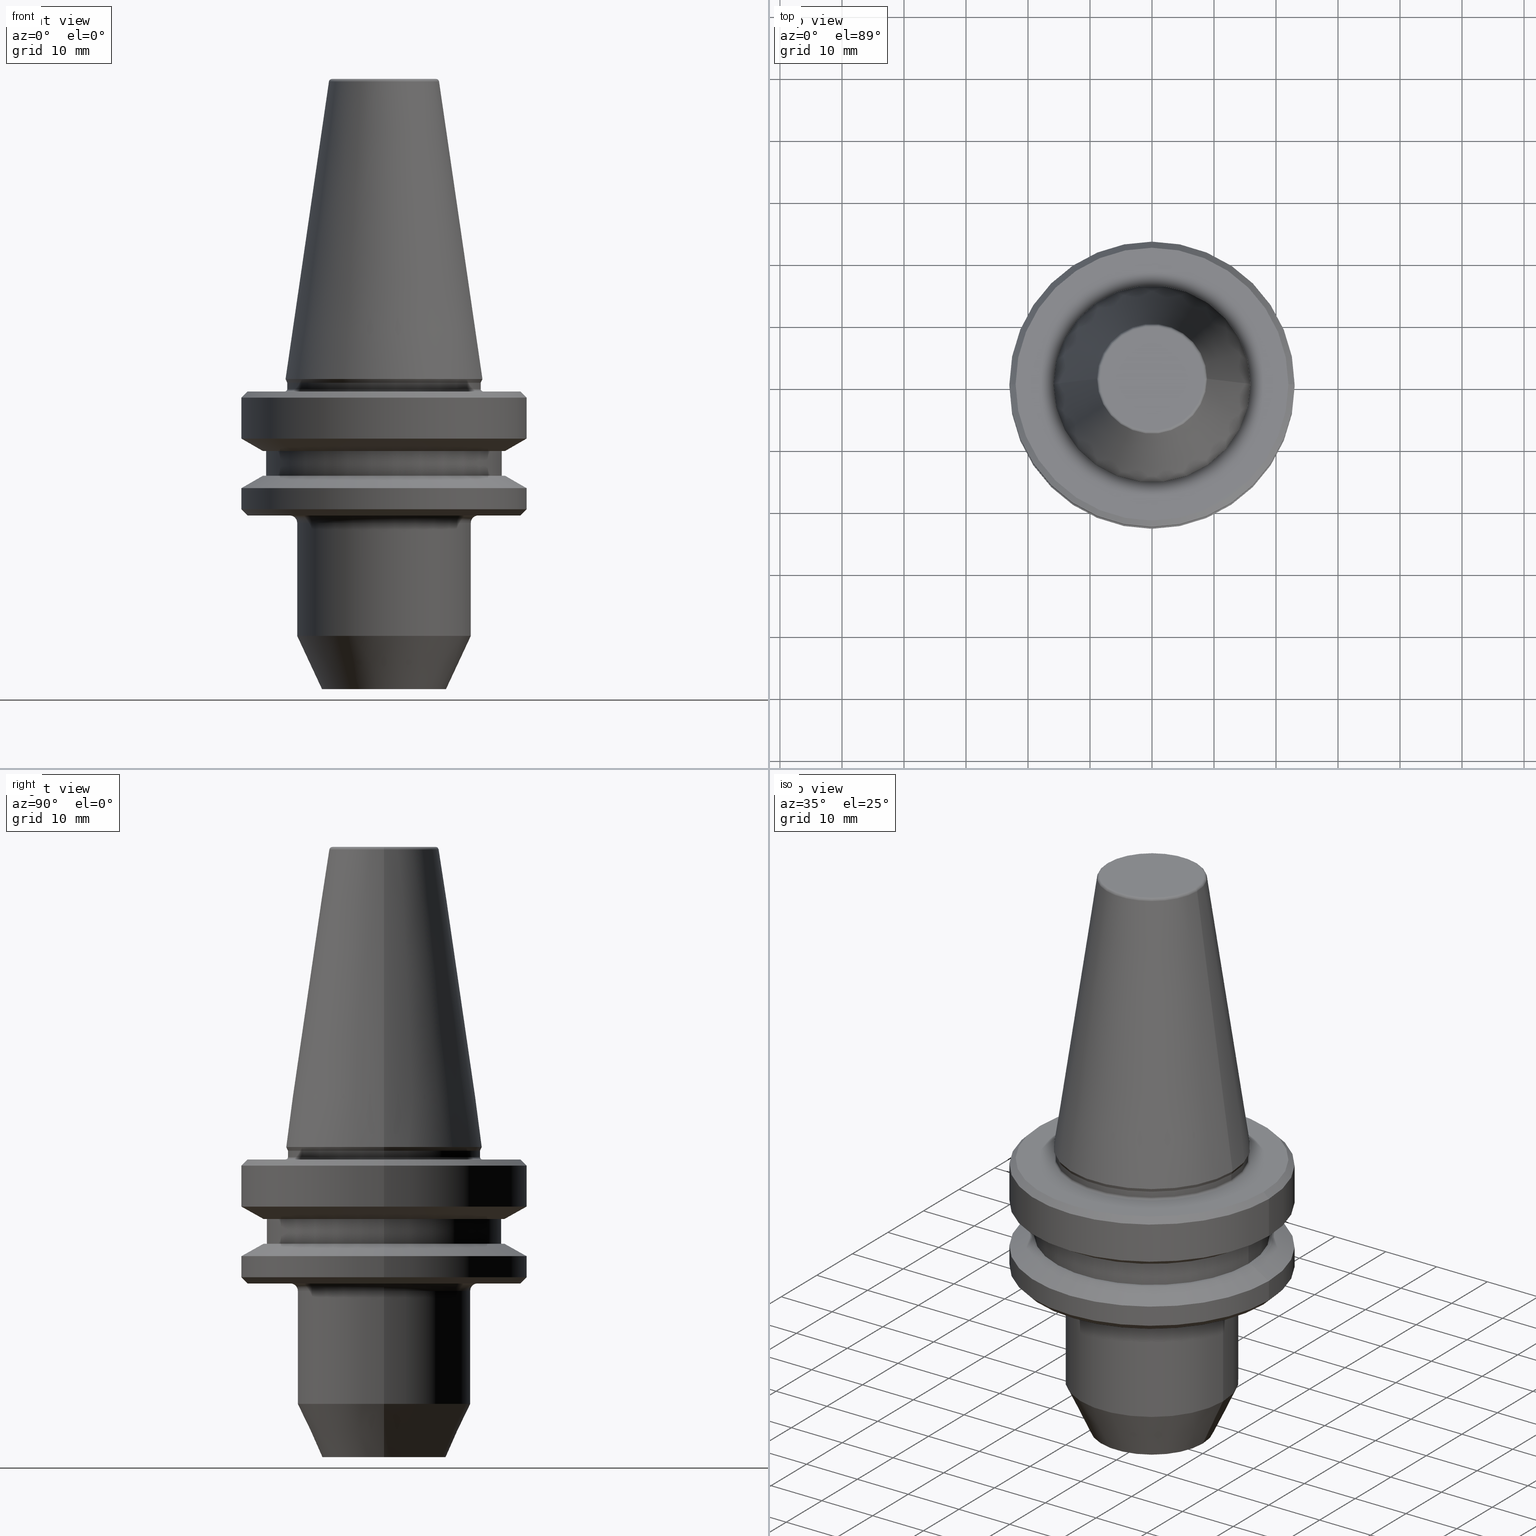
[diagram: canonical four-view strip — front | top / right | iso, engineering-drawing reading convention]
A machine part, canonical four-view strip (front | top / right | iso — engineering-drawing reading convention). The complete STEP part file that produces these views, byte-faithful:
ISO-10303-21;
HEADER;
FILE_DESCRIPTION (( 'STEP AP203' ),
    '1' );
FILE_NAME ('BT30 WE08 050 AD-6.3G15000 SL.STEP',
    '2019-05-22T05:54:54',
    ( '' ),
    ( '' ),
    'SwSTEP 2.0',
    'SolidWorks 2014',
    '' );
FILE_SCHEMA (( 'CONFIG_CONTROL_DESIGN' ));
ENDSEC;

DATA;
#1 = ORIENTED_EDGE ( 'NONE', *, *, #306, .F. ) ;
#2 = CYLINDRICAL_SURFACE ( 'NONE', #528, 22.99999999999990800 ) ;
#3 = DIRECTION ( 'NONE',  ( 1.000000000000000000, 0.0000000000000000000, 0.0000000000000000000 ) ) ;
#4 = DIRECTION ( 'NONE',  ( 1.000000000000000000, 0.0000000000000000000, 0.0000000000000000000 ) ) ;
#5 = CARTESIAN_POINT ( 'NONE',  ( 0.0000000000000000000, 0.0000000000000000000, -0.5897394031393332600 ) ) ;
#6 = PLANE ( 'NONE',  #633 ) ;
#7 = CARTESIAN_POINT ( 'NONE',  ( 0.0000000000000000000, 0.0000000000000000000, -2.000000000000001800 ) ) ;
#8 = EDGE_CURVE ( 'NONE', #522, #725, #570, .T. ) ;
#9 = CARTESIAN_POINT ( 'NONE',  ( 0.0000000000000000000, 15.19999999999999200, -21.99999999999957400 ) ) ;
#10 = DIRECTION ( 'NONE',  ( -0.0000000000000000000, -0.0000000000000000000, 1.000000000000000000 ) ) ;
#11 = AXIS2_PLACEMENT_3D ( 'NONE', #428, #445, #784 ) ;
#12 = ORIENTED_EDGE ( 'NONE', *, *, #461, .T. ) ;
#13 = VECTOR ( 'NONE', #254, 1000.000000000000000 ) ;
#14 = ORIENTED_EDGE ( 'NONE', *, *, #505, .F. ) ;
#15 = DIRECTION ( 'NONE',  ( 0.0000000000000000000, 0.0000000000000000000, -1.000000000000000000 ) ) ;
#16 = DIRECTION ( 'NONE',  ( -0.0000000000000000000, -0.0000000000000000000, 1.000000000000000000 ) ) ;
#17 = LOCAL_TIME ( 11, 24, 54.00000000000000000, #226 ) ;
#18 = AXIS2_PLACEMENT_3D ( 'NONE', #173, #127, #166 ) ;
#19 = DIRECTION ( 'NONE',  ( 1.000000000000000000, 0.0000000000000000000, 0.0000000000000000000 ) ) ;
#20 = DIRECTION ( 'NONE',  ( 1.000000000000000000, 0.0000000000000000000, 0.0000000000000000000 ) ) ;
#21 = CIRCLE ( 'NONE', #689, 22.99999999999990800 ) ;
#22 = APPROVAL_ROLE ( '' ) ;
#23 = AXIS2_PLACEMENT_3D ( 'NONE', #583, #629, #251 ) ;
#24 = ORIENTED_EDGE ( 'NONE', *, *, #973, .T. ) ;
#25 = EDGE_LOOP ( 'NONE', ( #310, #202, #536, #49 ) ) ;
#26 = VERTEX_POINT ( 'NONE', #729 ) ;
#27 = CIRCLE ( 'NONE', #418, 15.60000000000005800 ) ;
#28 = CARTESIAN_POINT ( 'NONE',  ( 0.0000000000000000000, 0.0000000000000000000, -2.000000000000001800 ) ) ;
#29 = ORIENTED_EDGE ( 'NONE', *, *, #78, .T. ) ;
#30 = CIRCLE ( 'NONE', #450, 21.99999999999990800 ) ;
#31 = AXIS2_PLACEMENT_3D ( 'NONE', #441, #422, #416 ) ;
#32 = DIRECTION ( 'NONE',  ( 0.0000000000000000000, 0.0000000000000000000, -1.000000000000000000 ) ) ;
#33 = DIRECTION ( 'NONE',  ( -1.000000000000000000, 1.224646799147351000E-016, 0.0000000000000000000 ) ) ;
#34 = ORIENTED_EDGE ( 'NONE', *, *, #669, .F. ) ;
#35 = DIRECTION ( 'NONE',  ( 0.0000000000000000000, 0.0000000000000000000, -1.000000000000000000 ) ) ;
#36 = ORIENTED_EDGE ( 'NONE', *, *, #661, .T. ) ;
#37 = FACE_OUTER_BOUND ( 'NONE', #983, .T. ) ;
#38 = VERTEX_POINT ( 'NONE', #717 ) ;
#39 = ORIENTED_EDGE ( 'NONE', *, *, #769, .F. ) ;
#40 = CARTESIAN_POINT ( 'NONE',  ( 22.99999999999990800, 0.0000000000000000000, 80.37668748141543100 ) ) ;
#41 = DIRECTION ( 'NONE',  ( -0.0000000000000000000, -0.0000000000000000000, 1.000000000000000000 ) ) ;
#42 = CARTESIAN_POINT ( 'NONE',  ( 0.0000000000000000000, 0.0000000000000000000, -2.000000000000001800 ) ) ;
#43 = CALENDAR_DATE ( 2019, 22, 5 ) ;
#44 = PRODUCT_RELATED_PRODUCT_CATEGORY ( 'detail', '', ( #79 ) ) ;
#45 = AXIS2_PLACEMENT_3D ( 'NONE', #598, #867, #496 ) ;
#46 = CARTESIAN_POINT ( 'NONE',  ( 0.0000000000000000000, 0.0000000000000000000, 48.39999999999969300 ) ) ;
#47 = DIRECTION ( 'NONE',  ( -0.0000000000000000000, -0.0000000000000000000, 1.000000000000000000 ) ) ;
#48 = CIRCLE ( 'NONE', #957, 15.60000000000022500 ) ;
#49 = ORIENTED_EDGE ( 'NONE', *, *, #987, .F. ) ;
#50 = ORIENTED_EDGE ( 'NONE', *, *, #994, .F. ) ;
#51 = ORIENTED_EDGE ( 'NONE', *, *, #987, .T. ) ;
#52 = DIRECTION ( 'NONE',  ( -0.0000000000000000000, -0.0000000000000000000, 1.000000000000000000 ) ) ;
#53 = CARTESIAN_POINT ( 'NONE',  ( -19.53610161513930200, 2.604585034559339600E-015, -11.59999999999938900 ) ) ;
#54 = FACE_OUTER_BOUND ( 'NONE', #135, .T. ) ;
#55 = AXIS2_PLACEMENT_3D ( 'NONE', #390, #781, #463 ) ;
#56 = CIRCLE ( 'NONE', #360, 1.200000000000089900 ) ;
#57 = ORIENTED_EDGE ( 'NONE', *, *, #184, .T. ) ;
#58 = CARTESIAN_POINT ( 'NONE',  ( 19.00000000000012800, 0.0000000000000000000, 80.37668748141543100 ) ) ;
#59 = DIRECTION ( 'NONE',  ( -0.7071067811865474600, 8.659560562354931600E-017, 0.7071067811865475700 ) ) ;
#60 = ADVANCED_FACE ( 'NONE', ( #788 ), #671, .F. ) ;
#61 = CYLINDRICAL_SURFACE ( 'NONE', #672, 22.99999999999990800 ) ;
#62 = ORIENTED_EDGE ( 'NONE', *, *, #86, .F. ) ;
#63 = CC_DESIGN_APPROVAL ( #189, ( #831 ) ) ;
#64 = AXIS2_PLACEMENT_3D ( 'NONE', #262, #637, #311 ) ;
#65 = VERTEX_POINT ( 'NONE', #640 ) ;
#66 = EDGE_CURVE ( 'NONE', #271, #359, #149, .T. ) ;
#67 = ADVANCED_FACE ( 'NONE', ( #961 ), #340, .F. ) ;
#68 = DIRECTION ( 'NONE',  ( 0.0000000000000000000, -1.000000000000000000, 0.0000000000000000000 ) ) ;
#69 = DATE_AND_TIME ( #275, #486 ) ;
#70 = CARTESIAN_POINT ( 'NONE',  ( 0.0000000000000000000, 0.0000000000000000000, -3.000000000000113700 ) ) ;
#71 = DIRECTION ( 'NONE',  ( -0.0000000000000000000, -0.0000000000000000000, 1.000000000000000000 ) ) ;
#72 = AXIS2_PLACEMENT_3D ( 'NONE', #228, #448, #467 ) ;
#73 = CALENDAR_DATE ( 2019, 22, 5 ) ;
#74 = CARTESIAN_POINT ( 'NONE',  ( 0.0000000000000000000, 0.0000000000000000000, -15.59999999999983600 ) ) ;
#75 = ORIENTED_EDGE ( 'NONE', *, *, #948, .T. ) ;
#76 = ORIENTED_EDGE ( 'NONE', *, *, #994, .T. ) ;
#77 = DIRECTION ( 'NONE',  ( -0.0000000000000000000, -0.0000000000000000000, 1.000000000000000000 ) ) ;
#78 = EDGE_CURVE ( 'NONE', #921, #180, #755, .T. ) ;
#79 = PRODUCT ( 'BT30 WE08 050 AD-6.3G15000 SL', 'BT30 WE08 050 AD-6.3G15000 SL', '', ( #665 ) ) ;
#80 = DIRECTION ( 'NONE',  ( -1.000000000000000000, 0.0000000000000000000, 0.0000000000000000000 ) ) ;
#81 = FACE_OUTER_BOUND ( 'NONE', #724, .T. ) ;
#82 = CARTESIAN_POINT ( 'NONE',  ( 0.0000000000000000000, 0.0000000000000000000, -1.599999999999823800 ) ) ;
#83 = CYLINDRICAL_SURFACE ( 'NONE', #128, 13.99999999999990100 ) ;
#84 = EDGE_LOOP ( 'NONE', ( #995, #478, #696, #866 ) ) ;
#85 = DIRECTION ( 'NONE',  ( -1.000000000000000000, 1.224646799147357200E-016, 0.0000000000000000000 ) ) ;
#86 = EDGE_CURVE ( 'NONE', #741, #488, #129, .T. ) ;
#87 = DIRECTION ( 'NONE',  ( 1.000000000000000000, 0.0000000000000000000, 0.0000000000000000000 ) ) ;
#88 = FACE_OUTER_BOUND ( 'NONE', #548, .T. ) ;
#89 = ORIENTED_EDGE ( 'NONE', *, *, #746, .T. ) ;
#90 = CARTESIAN_POINT ( 'NONE',  ( 0.0000000000000000000, 0.0000000000000000000, -15.59999999999983600 ) ) ;
#91 = PRODUCT_DEFINITION ( 'UNKNOWN', '', #301, #827 ) ;
#92 = DIRECTION ( 'NONE',  ( -0.0000000000000000000, -0.0000000000000000000, 1.000000000000000000 ) ) ;
#93 = PERSON_AND_ORGANIZATION ( #153, #514 ) ;
#94 = ORIENTED_EDGE ( 'NONE', *, *, #465, .T. ) ;
#95 = ADVANCED_FACE ( 'NONE', ( #527 ), #733, .F. ) ;
#96 = DIRECTION ( 'NONE',  ( 0.8660254037844393700, 0.0000000000000000000, 0.4999999999999985000 ) ) ;
#97 = AXIS2_PLACEMENT_3D ( 'NONE', #549, #899, #559 ) ;
#98 = ORIENTED_EDGE ( 'NONE', *, *, #274, .F. ) ;
#99 = CONICAL_SURFACE ( 'NONE', #358, 22.99999999999990800, 1.047197551196595000 ) ;
#100 = ORIENTED_EDGE ( 'NONE', *, *, #493, .F. ) ;
#101 = AXIS2_PLACEMENT_3D ( 'NONE', #834, #855, #511 ) ;
#102 = DIRECTION ( 'NONE',  ( 0.0000000000000000000, 0.0000000000000000000, 1.000000000000000000 ) ) ;
#103 = FACE_OUTER_BOUND ( 'NONE', #956, .T. ) ;
#104 = CIRCLE ( 'NONE', #647, 19.00000000000012800 ) ;
#105 = CIRCLE ( 'NONE', #554, 15.60000000000022500 ) ;
#106 = DIRECTION ( 'NONE',  ( -1.000000000000000000, 0.0000000000000000000, -0.0000000000000000000 ) ) ;
#107 = CARTESIAN_POINT ( 'NONE',  ( 19.53610161513741200, 2.604585034559224100E-015, -15.59999999999983600 ) ) ;
#108 = EDGE_LOOP ( 'NONE', ( #12, #664, #174, #356 ) ) ;
#109 = DIRECTION ( 'NONE',  ( -0.0000000000000000000, -0.0000000000000000000, 1.000000000000000000 ) ) ;
#110 = FACE_OUTER_BOUND ( 'NONE', #363, .T. ) ;
#111 = ORIENTED_EDGE ( 'NONE', *, *, #778, .T. ) ;
#112 = EDGE_LOOP ( 'NONE', ( #911, #270 ) ) ;
#113 = DIRECTION ( 'NONE',  ( -0.0000000000000000000, -0.0000000000000000000, 1.000000000000000000 ) ) ;
#114 = AXIS2_PLACEMENT_3D ( 'NONE', #201, #716, #833 ) ;
#115 = AXIS2_PLACEMENT_3D ( 'NONE', #501, #734, #162 ) ;
#116 = DIRECTION ( 'NONE',  ( -0.0000000000000000000, -0.0000000000000000000, 1.000000000000000000 ) ) ;
#117 = ORIENTED_EDGE ( 'NONE', *, *, #78, .F. ) ;
#118 = CARTESIAN_POINT ( 'NONE',  ( -19.53610161513741200, 0.0000000000000000000, -15.59999999999983600 ) ) ;
#119 = CIRCLE ( 'NONE', #326, 22.99999999999990800 ) ;
#120 = DIRECTION ( 'NONE',  ( 1.000000000000000000, 0.0000000000000000000, 0.0000000000000000000 ) ) ;
#121 = ORIENTED_EDGE ( 'NONE', *, *, #610, .T. ) ;
#122 = EDGE_CURVE ( 'NONE', #380, #907, #362, .T. ) ;
#123 = DIRECTION ( 'NONE',  ( 1.000000000000000000, 0.0000000000000000000, 0.0000000000000000000 ) ) ;
#124 = ORIENTED_EDGE ( 'NONE', *, *, #169, .T. ) ;
#125 = DIRECTION ( 'NONE',  ( 0.0000000000000000000, 0.0000000000000000000, -1.000000000000000000 ) ) ;
#126 = EDGE_CURVE ( 'NONE', #466, #910, #104, .T. ) ;
#127 = DIRECTION ( 'NONE',  ( -0.0000000000000000000, -0.0000000000000000000, 1.000000000000000000 ) ) ;
#128 = AXIS2_PLACEMENT_3D ( 'NONE', #203, #624, #182 ) ;
#129 = CIRCLE ( 'NONE', #510, 16.00000000000034800 ) ;
#130 = VERTEX_POINT ( 'NONE', #1001 ) ;
#131 = DIRECTION ( 'NONE',  ( -1.000000000000000000, 0.0000000000000000000, 0.0000000000000000000 ) ) ;
#132 = DIRECTION ( 'NONE',  ( 0.0000000000000000000, 0.0000000000000000000, -1.000000000000000000 ) ) ;
#133 = CYLINDRICAL_SURFACE ( 'NONE', #178, 19.00000000000012800 ) ;
#134 = ADVANCED_FACE ( 'NONE', ( #317 ), #83, .T. ) ;
#135 = EDGE_LOOP ( 'NONE', ( #98, #330, #216, #176 ) ) ;
#136 = CIRCLE ( 'NONE', #487, 21.99999999999990800 ) ;
#137 = CARTESIAN_POINT ( 'NONE',  ( -8.384228427309349000, 1.026771850682464100E-015, 47.89999999999960800 ) ) ;
#138 = EDGE_CURVE ( 'NONE', #427, #968, #287, .T. ) ;
#139 = DIRECTION ( 'NONE',  ( -0.0000000000000000000, -0.0000000000000000000, 1.000000000000000000 ) ) ;
#140 = CARTESIAN_POINT ( 'NONE',  ( 0.0000000000000000000, 0.0000000000000000000, -20.99999999999990800 ) ) ;
#141 = EDGE_CURVE ( 'NONE', #836, #260, #502, .T. ) ;
#142 = ADVANCED_FACE ( 'NONE', ( #708 ), #265, .T. ) ;
#143 = ORIENTED_EDGE ( 'NONE', *, *, #737, .T. ) ;
#144 = FACE_OUTER_BOUND ( 'NONE', #599, .T. ) ;
#145 = ORIENTED_EDGE ( 'NONE', *, *, #587, .F. ) ;
#146 = DIRECTION ( 'NONE',  ( -0.0000000000000000000, -0.0000000000000000000, 1.000000000000000000 ) ) ;
#147 = ADVANCED_FACE ( 'NONE', ( #684 ), #449, .T. ) ;
#148 = CARTESIAN_POINT ( 'NONE',  ( 13.99999999999990100, 0.0000000000000000000, -23.19999999999966500 ) ) ;
#149 = LINE ( 'NONE', #843, #552 ) ;
#150 = AXIS2_PLACEMENT_3D ( 'NONE', #949, #785, #531 ) ;
#151 = VERTEX_POINT ( 'NONE', #53 ) ;
#152 = CIRCLE ( 'NONE', #757, 1.200000000000089900 ) ;
#153 = PERSON ( 'UNSPECIFIED', 'UNSPECIFIED', 'UNSPECIFIED', ('UNSPECIFIED'), ('UNSPECIFIED'), ('UNSPECIFIED') ) ;
#154 = LINE ( 'NONE', #774, #967 ) ;
#155 = PERSON_AND_ORGANIZATION_ROLE ( 'creator' ) ;
#156 = CIRCLE ( 'NONE', #161, 19.00000000000012800 ) ;
#157 = CARTESIAN_POINT ( 'NONE',  ( 0.0000000000000000000, 0.0000000000000000000, 47.89999999999960800 ) ) ;
#158 = DIRECTION ( 'NONE',  ( 1.000000000000000000, 0.0000000000000000000, 0.0000000000000000000 ) ) ;
#159 = AXIS2_PLACEMENT_3D ( 'NONE', #9, #679, #951 ) ;
#160 = CARTESIAN_POINT ( 'NONE',  ( 22.99999999999990800, 0.0000000000000000000, -3.000000000000113700 ) ) ;
#161 = AXIS2_PLACEMENT_3D ( 'NONE', #771, #276, #497 ) ;
#162 = DIRECTION ( 'NONE',  ( 1.000000000000000000, 0.0000000000000000000, 0.0000000000000000000 ) ) ;
#163 = FACE_OUTER_BOUND ( 'NONE', #207, .T. ) ;
#164 = ORIENTED_EDGE ( 'NONE', *, *, #923, .F. ) ;
#165 = CARTESIAN_POINT ( 'NONE',  ( -22.99999999999990800, 2.816687638038901300E-015, -9.600117335054614300 ) ) ;
#166 = DIRECTION ( 'NONE',  ( 1.000000000000000000, 0.0000000000000000000, 0.0000000000000000000 ) ) ;
#167 = DIRECTION ( 'NONE',  ( 1.000000000000000000, 0.0000000000000000000, 0.0000000000000000000 ) ) ;
#168 = DIRECTION ( 'NONE',  ( -0.0000000000000000000, -0.0000000000000000000, 1.000000000000000000 ) ) ;
#169 = EDGE_CURVE ( 'NONE', #533, #359, #892, .T. ) ;
#170 = CALENDAR_DATE ( 2019, 22, 5 ) ;
#171 = CARTESIAN_POINT ( 'NONE',  ( -13.99999999999990100, 1.714505518806282400E-015, -23.19999999999966500 ) ) ;
#172 = CARTESIAN_POINT ( 'NONE',  ( 0.0000000000000000000, 0.0000000000000000000, -9.600117335054614300 ) ) ;
#173 = CARTESIAN_POINT ( 'NONE',  ( 0.0000000000000000000, 0.0000000000000000000, 48.39999999999969300 ) ) ;
#174 = ORIENTED_EDGE ( 'NONE', *, *, #500, .F. ) ;
#175 = CARTESIAN_POINT ( 'NONE',  ( -10.00000000000012100, 1.224646799147367900E-015, -49.99999999999982200 ) ) ;
#176 = ORIENTED_EDGE ( 'NONE', *, *, #721, .F. ) ;
#177 = LINE ( 'NONE', #575, #792 ) ;
#178 = AXIS2_PLACEMENT_3D ( 'NONE', #504, #146, #343 ) ;
#179 = AXIS2_PLACEMENT_3D ( 'NONE', #824, #905, #820 ) ;
#180 = VERTEX_POINT ( 'NONE', #622 ) ;
#181 = CIRCLE ( 'NONE', #516, 13.99999999999990100 ) ;
#182 = DIRECTION ( 'NONE',  ( 1.000000000000000000, 0.0000000000000000000, 0.0000000000000000000 ) ) ;
#183 = CARTESIAN_POINT ( 'NONE',  ( -22.00000000000024200, 2.694222958124206400E-015, -21.99999999999957400 ) ) ;
#184 = EDGE_CURVE ( 'NONE', #921, #727, #872, .T. ) ;
#185 = FACE_OUTER_BOUND ( 'NONE', #813, .T. ) ;
#186 = CARTESIAN_POINT ( 'NONE',  ( 0.0000000000000000000, 0.0000000000000000000, -23.19999999999966500 ) ) ;
#187 = DIRECTION ( 'NONE',  ( -0.0000000000000000000, -0.0000000000000000000, 1.000000000000000000 ) ) ;
#188 = CARTESIAN_POINT ( 'NONE',  ( -15.60000000000005800, 1.910449006669878000E-015, -0.5897394031393332600 ) ) ;
#189 = APPROVAL ( #743, 'UNSPECIFIED' ) ;
#190 = AXIS2_PLACEMENT_3D ( 'NONE', #604, #979, #772 ) ;
#191 = CIRCLE ( 'NONE', #289, 22.99999999999990800 ) ;
#192 = ORIENTED_EDGE ( 'NONE', *, *, #669, .T. ) ;
#193 = CARTESIAN_POINT ( 'NONE',  ( -15.60000000000005800, 1.910449006669883500E-015, -0.5897394031393332600 ) ) ;
#194 = VERTEX_POINT ( 'NONE', #763 ) ;
#195 = ORIENTED_EDGE ( 'NONE', *, *, #924, .F. ) ;
#196 = PERSON_AND_ORGANIZATION_ROLE ( 'design_supplier' ) ;
#197 = CARTESIAN_POINT ( 'NONE',  ( 0.0000000000000000000, 0.0000000000000000000, 0.0000000000000000000 ) ) ;
#198 = DIRECTION ( 'NONE',  ( -0.0000000000000000000, -0.0000000000000000000, 1.000000000000000000 ) ) ;
#199 = PERSON_AND_ORGANIZATION ( #153, #514 ) ;
#200 = EDGE_CURVE ( 'NONE', #260, #522, #917, .T. ) ;
#201 = CARTESIAN_POINT ( 'NONE',  ( 0.0000000000000000000, 0.0000000000000000000, -11.59999999999938900 ) ) ;
#202 = ORIENTED_EDGE ( 'NONE', *, *, #493, .T. ) ;
#203 = CARTESIAN_POINT ( 'NONE',  ( 0.0000000000000000000, 0.0000000000000000000, 80.37668748141543100 ) ) ;
#204 = ORIENTED_EDGE ( 'NONE', *, *, #924, .T. ) ;
#205 = VECTOR ( 'NONE', #96, 1000.000000000000100 ) ;
#206 = CARTESIAN_POINT ( 'NONE',  ( 0.0000000000000000000, 0.0000000000000000000, -3.000000000000113700 ) ) ;
#207 = EDGE_LOOP ( 'NONE', ( #840, #302, #650, #221 ) ) ;
#208 = CIRCLE ( 'NONE', #574, 19.00000000000012800 ) ;
#209 = CARTESIAN_POINT ( 'NONE',  ( 0.0000000000000000000, 0.0000000000000000000, -41.42197231796185300 ) ) ;
#210 = DIRECTION ( 'NONE',  ( 1.000000000000000000, 0.0000000000000000000, 0.0000000000000000000 ) ) ;
#211 = CARTESIAN_POINT ( 'NONE',  ( -22.99999999999990800, 2.816687638038901300E-015, 80.37668748141543100 ) ) ;
#212 = CARTESIAN_POINT ( 'NONE',  ( 0.0000000000000000000, 0.0000000000000000000, -21.99999999999957400 ) ) ;
#213 = VECTOR ( 'NONE', #868, 1000.000000000000000 ) ;
#214 = EDGE_CURVE ( 'NONE', #380, #261, #56, .T. ) ;
#215 = DIRECTION ( 'NONE',  ( 0.0000000000000000000, 0.0000000000000000000, -1.000000000000000000 ) ) ;
#216 = ORIENTED_EDGE ( 'NONE', *, *, #322, .T. ) ;
#217 = ORIENTED_EDGE ( 'NONE', *, *, #306, .T. ) ;
#218 = CC_DESIGN_APPROVAL ( #641, ( #91 ) ) ;
#219 = ADVANCED_FACE ( 'NONE', ( #659 ), #440, .T. ) ;
#220 = FACE_OUTER_BOUND ( 'NONE', #108, .T. ) ;
#221 = ORIENTED_EDGE ( 'NONE', *, *, #778, .F. ) ;
#222 = ORIENTED_EDGE ( 'NONE', *, *, #370, .F. ) ;
#223 = APPROVAL_ROLE ( '' ) ;
#224 = DIRECTION ( 'NONE',  ( -0.8660254037844372600, 0.0000000000000000000, -0.5000000000000024400 ) ) ;
#225 = ADVANCED_FACE ( 'NONE', ( #864, #475 ), #381, .F. ) ;
#226 = COORDINATED_UNIVERSAL_TIME_OFFSET ( 5, 30, .AHEAD. ) ;
#227 = CARTESIAN_POINT ( 'NONE',  ( 22.99999999999990800, 2.816687638038901300E-015, -17.59988266494572100 ) ) ;
#228 = CARTESIAN_POINT ( 'NONE',  ( 0.0000000000000000000, 0.0000000000000000000, -21.99999999999957400 ) ) ;
#229 = DIRECTION ( 'NONE',  ( 0.0000000000000000000, 0.0000000000000000000, -1.000000000000000000 ) ) ;
#230 = ORIENTED_EDGE ( 'NONE', *, *, #122, .F. ) ;
#231 = CIRCLE ( 'NONE', #960, 8.878994820583407900 ) ;
#232 = CARTESIAN_POINT ( 'NONE',  ( 0.0000000000000000000, 0.0000000000000000000, -49.99999999999982200 ) ) ;
#233 = ORIENTED_EDGE ( 'NONE', *, *, #561, .F. ) ;
#234 = ORIENTED_EDGE ( 'NONE', *, *, #8, .F. ) ;
#235 = DIRECTION ( 'NONE',  ( -1.000000000000000000, 0.0000000000000000000, 0.0000000000000000000 ) ) ;
#236 = TOROIDAL_SURFACE ( 'NONE', #97, 8.384228427309349000, 0.5000000000000846000 ) ;
#237 = AXIS2_PLACEMENT_3D ( 'NONE', #551, #266, #297 ) ;
#238 = EDGE_CURVE ( 'NONE', #271, #352, #48, .T. ) ;
#239 = DIRECTION ( 'NONE',  ( -0.0000000000000000000, -0.0000000000000000000, 1.000000000000000000 ) ) ;
#240 = TOROIDAL_SURFACE ( 'NONE', #291, 8.384228427309349000, 0.5000000000000846000 ) ;
#241 = AXIS2_PLACEMENT_3D ( 'NONE', #625, #573, #680 ) ;
#242 = VECTOR ( 'NONE', #59, 1000.000000000000000 ) ;
#243 = DIRECTION ( 'NONE',  ( -0.0000000000000000000, -0.0000000000000000000, 1.000000000000000000 ) ) ;
#244 = AXIS2_PLACEMENT_3D ( 'NONE', #232, #582, #20 ) ;
#245 = DIRECTION ( 'NONE',  ( 1.000000000000000000, 0.0000000000000000000, 0.0000000000000000000 ) ) ;
#246 = CARTESIAN_POINT ( 'NONE',  ( 0.0000000000000000000, 0.0000000000000000000, -1.599999999999823800 ) ) ;
#247 = EDGE_LOOP ( 'NONE', ( #730, #124, #881, #443 ) ) ;
#248 = CONICAL_SURFACE ( 'NONE', #697, 22.99999999999990800, 0.7853981633973927700 ) ;
#249 = DIRECTION ( 'NONE',  ( -1.000000000000000000, 0.0000000000000000000, 0.0000000000000000000 ) ) ;
#250 = ORIENTED_EDGE ( 'NONE', *, *, #389, .F. ) ;
#251 = DIRECTION ( 'NONE',  ( 1.000000000000000000, 0.0000000000000000000, 0.0000000000000000000 ) ) ;
#252 = AXIS2_PLACEMENT_3D ( 'NONE', #618, #612, #540 ) ;
#253 = VERTEX_POINT ( 'NONE', #348 ) ;
#254 = DIRECTION ( 'NONE',  ( 0.1443082268835123000, 1.767266081435233600E-017, -0.9895327865481450300 ) ) ;
#255 = LOCAL_TIME ( 11, 24, 54.00000000000000000, #462 ) ;
#256 = CARTESIAN_POINT ( 'NONE',  ( 0.0000000000000000000, 0.0000000000000000000, -11.59999999999938900 ) ) ;
#257 = DIRECTION ( 'NONE',  ( 1.000000000000000000, 0.0000000000000000000, 0.0000000000000000000 ) ) ;
#258 = ORIENTED_EDGE ( 'NONE', *, *, #485, .F. ) ;
#259 = CARTESIAN_POINT ( 'NONE',  ( -15.19999999999999200, 1.861463134703975900E-015, -21.99999999999957400 ) ) ;
#260 = VERTEX_POINT ( 'NONE', #476 ) ;
#261 = VERTEX_POINT ( 'NONE', #171 ) ;
#262 = CARTESIAN_POINT ( 'NONE',  ( 0.0000000000000000000, 0.0000000000000000000, 80.37668748141543100 ) ) ;
#263 = DIRECTION ( 'NONE',  ( -0.0000000000000000000, -0.0000000000000000000, 1.000000000000000000 ) ) ;
#264 = CIRCLE ( 'NONE', #707, 22.99999999999990800 ) ;
#265 = CYLINDRICAL_SURFACE ( 'NONE', #945, 15.60000000000014200 ) ;
#266 = DIRECTION ( 'NONE',  ( -0.0000000000000000000, -0.0000000000000000000, 1.000000000000000000 ) ) ;
#267 = EDGE_CURVE ( 'NONE', #130, #180, #21, .T. ) ;
#268 = VECTOR ( 'NONE', #411, 1000.000000000000100 ) ;
#269 = DIRECTION ( 'NONE',  ( 1.000000000000000000, 0.0000000000000000000, 0.0000000000000000000 ) ) ;
#270 = ORIENTED_EDGE ( 'NONE', *, *, #122, .T. ) ;
#271 = VERTEX_POINT ( 'NONE', #563 ) ;
#272 = CARTESIAN_POINT ( 'NONE',  ( 22.99999999999990800, 0.0000000000000000000, 80.37668748141543100 ) ) ;
#273 = DIRECTION ( 'NONE',  ( 0.0000000000000000000, 0.0000000000000000000, -1.000000000000000000 ) ) ;
#274 = EDGE_CURVE ( 'NONE', #999, #600, #231, .T. ) ;
#275 = CALENDAR_DATE ( 2019, 22, 5 ) ;
#276 = DIRECTION ( 'NONE',  ( -0.0000000000000000000, -0.0000000000000000000, 1.000000000000000000 ) ) ;
#277 = APPLICATION_PROTOCOL_DEFINITION ( 'international standard', 'config_control_design', 1994, #985 ) ;
#278 = DIRECTION ( 'NONE',  ( -0.1443082268835123000, 0.0000000000000000000, -0.9895327865481450300 ) ) ;
#279 = CARTESIAN_POINT ( 'NONE',  ( 0.0000000000000000000, 0.0000000000000000000, -0.5897394031393332600 ) ) ;
#280 = ORIENTED_EDGE ( 'NONE', *, *, #141, .F. ) ;
#281 = DIRECTION ( 'NONE',  ( 1.000000000000000000, 0.0000000000000000000, 0.0000000000000000000 ) ) ;
#282 = DIRECTION ( 'NONE',  ( 1.000000000000000000, 0.0000000000000000000, 0.0000000000000000000 ) ) ;
#283 = AXIS2_PLACEMENT_3D ( 'NONE', #137, #402, #85 ) ;
#284 = CARTESIAN_POINT ( 'NONE',  ( 0.0000000000000000000, 0.0000000000000000000, -17.59988266494572100 ) ) ;
#285 = AXIS2_PLACEMENT_3D ( 'NONE', #530, #768, #745 ) ;
#286 = FACE_OUTER_BOUND ( 'NONE', #398, .T. ) ;
#287 = CIRCLE ( 'NONE', #150, 10.00000000000012100 ) ;
#288 = VECTOR ( 'NONE', #857, 1000.000000000000000 ) ;
#289 = AXIS2_PLACEMENT_3D ( 'NONE', #172, #353, #709 ) ;
#290 = VERTEX_POINT ( 'NONE', #436 ) ;
#291 = AXIS2_PLACEMENT_3D ( 'NONE', #157, #590, #123 ) ;
#292 = CIRCLE ( 'NONE', #115, 22.00000000000024200 ) ;
#293 = ORIENTED_EDGE ( 'NONE', *, *, #438, .T. ) ;
#294 = CARTESIAN_POINT ( 'NONE',  ( 22.00000000000024200, 0.0000000000000000000, -21.99999999999957400 ) ) ;
#295 = DIRECTION ( 'NONE',  ( -0.0000000000000000000, -0.0000000000000000000, 1.000000000000000000 ) ) ;
#296 = PRODUCT_DEFINITION_SHAPE ( 'NONE', 'NONE',  #91 ) ;
#297 = DIRECTION ( 'NONE',  ( 1.000000000000000000, 0.0000000000000000000, 0.0000000000000000000 ) ) ;
#298 = ADVANCED_FACE ( 'NONE', ( #627, #651 ), #567, .F. ) ;
#299 = ORIENTED_EDGE ( 'NONE', *, *, #948, .F. ) ;
#300 = PERSON_AND_ORGANIZATION ( #153, #514 ) ;
#301 = PRODUCT_DEFINITION_FORMATION_WITH_SPECIFIED_SOURCE ( 'ANY', '', #79, .NOT_KNOWN. ) ;
#302 = ORIENTED_EDGE ( 'NONE', *, *, #564, .T. ) ;
#303 = ADVANCED_FACE ( 'NONE', ( #837, #1000 ), #817, .F. ) ;
#304 = DIRECTION ( 'NONE',  ( -0.0000000000000000000, -0.0000000000000000000, 1.000000000000000000 ) ) ;
#305 = VERTEX_POINT ( 'NONE', #404 ) ;
#306 = EDGE_CURVE ( 'NONE', #675, #386, #814, .T. ) ;
#307 = ORIENTED_EDGE ( 'NONE', *, *, #86, .T. ) ;
#308 = CIRCLE ( 'NONE', #11, 8.878994820583407900 ) ;
#309 = ORIENTED_EDGE ( 'NONE', *, *, #923, .T. ) ;
#310 = ORIENTED_EDGE ( 'NONE', *, *, #409, .F. ) ;
#311 = DIRECTION ( 'NONE',  ( 1.000000000000000000, 0.0000000000000000000, 0.0000000000000000000 ) ) ;
#312 = EDGE_CURVE ( 'NONE', #898, #305, #412, .T. ) ;
#313 = DIRECTION ( 'NONE',  ( 1.000000000000000000, 0.0000000000000000000, 0.0000000000000000000 ) ) ;
#314 = CARTESIAN_POINT ( 'NONE',  ( 0.0000000000000000000, 0.0000000000000000000, -3.000000000000113700 ) ) ;
#315 = CIRCLE ( 'NONE', #990, 22.99999999999990800 ) ;
#316 = EDGE_CURVE ( 'NONE', #65, #544, #177, .T. ) ;
#317 = FACE_OUTER_BOUND ( 'NONE', #391, .T. ) ;
#318 = CONICAL_SURFACE ( 'NONE', #619, 15.60000000000005800, 0.4363323129989794500 ) ;
#319 = CARTESIAN_POINT ( 'NONE',  ( -10.00000000000012100, 1.469576158976825100E-015, -49.99999999999982200 ) ) ;
#320 = EDGE_LOOP ( 'NONE', ( #62, #896 ) ) ;
#321 = CONICAL_SURFACE ( 'NONE', #602, 22.99999999999990800, 0.7853981633973927700 ) ;
#322 = EDGE_CURVE ( 'NONE', #806, #403, #597, .T. ) ;
#323 = CARTESIAN_POINT ( 'NONE',  ( 15.19999999999999200, 0.0000000000000000000, -23.19999999999966500 ) ) ;
#324 = CARTESIAN_POINT ( 'NONE',  ( 15.60000000000005800, 0.0000000000000000000, -0.5897394031393332600 ) ) ;
#325 = DIRECTION ( 'NONE',  ( -0.0000000000000000000, -0.0000000000000000000, 1.000000000000000000 ) ) ;
#326 = AXIS2_PLACEMENT_3D ( 'NONE', #482, #451, #704 ) ;
#327 = DIRECTION ( 'NONE',  ( 1.000000000000000000, 0.0000000000000000000, 0.0000000000000000000 ) ) ;
#328 = CARTESIAN_POINT ( 'NONE',  ( 0.0000000000000000000, 0.0000000000000000000, -21.99999999999957400 ) ) ;
#329 = APPROVAL_STATUS ( 'not_yet_approved' ) ;
#330 = ORIENTED_EDGE ( 'NONE', *, *, #714, .T. ) ;
#331 = CLOSED_SHELL ( 'NONE', ( #926, #925, #147, #683, #377, #538, #620, #691, #372, #986, #219, #344, #773, #134, #695, #989, #60, #414, #759, #67, #863, #545, #454, #766, #225, #993, #303, #764, #854, #611, #298, #95, #142, #373, #534, #460 ) ) ;
#332 = CYLINDRICAL_SURFACE ( 'NONE', #339, 13.99999999999990100 ) ;
#333 = ORIENTED_EDGE ( 'NONE', *, *, #430, .T. ) ;
#334 = AXIS2_PLACEMENT_3D ( 'NONE', #660, #15, #131 ) ;
#335 = DIRECTION ( 'NONE',  ( 0.0000000000000000000, 0.0000000000000000000, -1.000000000000000000 ) ) ;
#336 = DIRECTION ( 'NONE',  ( 1.000000000000000000, 0.0000000000000000000, 0.0000000000000000000 ) ) ;
#337 = ORIENTED_EDGE ( 'NONE', *, *, #714, .F. ) ;
#338 = DIRECTION ( 'NONE',  ( -0.0000000000000000000, -0.0000000000000000000, 1.000000000000000000 ) ) ;
#339 = AXIS2_PLACEMENT_3D ( 'NONE', #518, #116, #167 ) ;
#340 = TOROIDAL_SURFACE ( 'NONE', #935, 15.19999999999999200, 1.200000000000089900 ) ;
#341 = DIRECTION ( 'NONE',  ( 1.000000000000000000, 0.0000000000000000000, 0.0000000000000000000 ) ) ;
#342 = CONICAL_SURFACE ( 'NONE', #23, 22.00000000000024200, 0.7853981633974482800 ) ;
#343 = DIRECTION ( 'NONE',  ( 1.000000000000000000, 0.0000000000000000000, 0.0000000000000000000 ) ) ;
#344 = ADVANCED_FACE ( 'NONE', ( #365 ), #342, .T. ) ;
#345 = LINE ( 'NONE', #890, #506 ) ;
#346 = AXIS2_PLACEMENT_3D ( 'NONE', #90, #937, #871 ) ;
#347 = ORIENTED_EDGE ( 'NONE', *, *, #811, .T. ) ;
#348 = CARTESIAN_POINT ( 'NONE',  ( -8.384228427309237100, 1.057067554674900100E-015, 48.39999999999969300 ) ) ;
#349 = ORIENTED_EDGE ( 'NONE', *, *, #904, .T. ) ;
#350 = DIRECTION ( 'NONE',  ( -0.4226182617406911700, 5.175581015019557100E-017, 0.9063077870366537100 ) ) ;
#351 = AXIS2_PLACEMENT_3D ( 'NONE', #186, #474, #751 ) ;
#352 = VERTEX_POINT ( 'NONE', #361 ) ;
#353 = DIRECTION ( 'NONE',  ( -0.0000000000000000000, -0.0000000000000000000, 1.000000000000000000 ) ) ;
#354 = ORIENTED_EDGE ( 'NONE', *, *, #550, .F. ) ;
#355 = VECTOR ( 'NONE', #350, 1000.000000000000100 ) ;
#356 = ORIENTED_EDGE ( 'NONE', *, *, #973, .F. ) ;
#357 = ORIENTED_EDGE ( 'NONE', *, *, #561, .T. ) ;
#358 = AXIS2_PLACEMENT_3D ( 'NONE', #686, #35, #249 ) ;
#359 = VERTEX_POINT ( 'NONE', #324 ) ;
#360 = AXIS2_PLACEMENT_3D ( 'NONE', #914, #526, #442 ) ;
#361 = CARTESIAN_POINT ( 'NONE',  ( -15.60000000000022500, 1.934941942652853100E-015, -1.599999999999823800 ) ) ;
#362 = CIRCLE ( 'NONE', #72, 15.19999999999999200 ) ;
#363 = EDGE_LOOP ( 'NONE', ( #998, #367, #143, #234 ) ) ;
#364 = EDGE_LOOP ( 'NONE', ( #145, #347, #512, #117 ) ) ;
#365 = FACE_OUTER_BOUND ( 'NONE', #815, .T. ) ;
#366 = AXIS2_PLACEMENT_3D ( 'NONE', #140, #338, #341 ) ;
#367 = ORIENTED_EDGE ( 'NONE', *, *, #682, .T. ) ;
#368 = LINE ( 'NONE', #58, #736 ) ;
#369 = CARTESIAN_POINT ( 'NONE',  ( -8.878994820583407900, 0.0000000000000000000, 47.97215411344146900 ) ) ;
#370 = EDGE_CURVE ( 'NONE', #253, #38, #553, .T. ) ;
#371 = CONICAL_SURFACE ( 'NONE', #446, 22.99999999999990800, 1.047197551196595000 ) ;
#372 = ADVANCED_FACE ( 'NONE', ( #756 ), #133, .T. ) ;
#373 = ADVANCED_FACE ( 'NONE', ( #571 ), #318, .T. ) ;
#374 = AXIS2_PLACEMENT_3D ( 'NONE', #988, #375, #215 ) ;
#375 = DIRECTION ( 'NONE',  ( 0.0000000000000000000, -1.000000000000000000, 0.0000000000000000000 ) ) ;
#376 = AXIS2_PLACEMENT_3D ( 'NONE', #328, #198, #801 ) ;
#377 = ADVANCED_FACE ( 'NONE', ( #964 ), #735, .F. ) ;
#378 = CONICAL_SURFACE ( 'NONE', #179, 10.00000000000012100, 0.4363323129985732800 ) ;
#379 = ORIENTED_EDGE ( 'NONE', *, *, #628, .T. ) ;
#380 = VERTEX_POINT ( 'NONE', #259 ) ;
#381 = PLANE ( 'NONE',  #408 ) ;
#382 = LOCAL_TIME ( 11, 24, 54.00000000000000000, #588 ) ;
#383 = LOCAL_TIME ( 11, 24, 54.00000000000000000, #589 ) ;
#384 = DIRECTION ( 'NONE',  ( -0.0000000000000000000, -0.0000000000000000000, 1.000000000000000000 ) ) ;
#385 = ORIENTED_EDGE ( 'NONE', *, *, #138, .T. ) ;
#386 = VERTEX_POINT ( 'NONE', #148 ) ;
#387 = ORIENTED_EDGE ( 'NONE', *, *, #430, .F. ) ;
#388 = VECTOR ( 'NONE', #591, 1000.000000000000000 ) ;
#389 = EDGE_CURVE ( 'NONE', #907, #386, #152, .T. ) ;
#390 = CARTESIAN_POINT ( 'NONE',  ( 0.0000000000000000000, 19.53610161513930200, -11.59999999999938900 ) ) ;
#391 = EDGE_LOOP ( 'NONE', ( #490, #437, #556, #1 ) ) ;
#392 = DIRECTION ( 'NONE',  ( 0.0000000000000000000, 0.0000000000000000000, -1.000000000000000000 ) ) ;
#393 = LINE ( 'NONE', #40, #578 ) ;
#394 = EDGE_CURVE ( 'NONE', #261, #386, #941, .T. ) ;
#395 = FACE_OUTER_BOUND ( 'NONE', #431, .T. ) ;
#396 = EDGE_CURVE ( 'NONE', #898, #151, #982, .T. ) ;
#397 = DIRECTION ( 'NONE',  ( 0.4226182617410592600, 0.0000000000000000000, 0.9063077870364820700 ) ) ;
#398 = EDGE_LOOP ( 'NONE', ( #653, #111, #652, #195 ) ) ;
#399 = VECTOR ( 'NONE', #278, 1000.000000000000000 ) ;
#400 = ORIENTED_EDGE ( 'NONE', *, *, #694, .F. ) ;
#401 = AXIS2_PLACEMENT_3D ( 'NONE', #209, #168, #767 ) ;
#402 = DIRECTION ( 'NONE',  ( 1.224646799147353200E-016, 1.000000000000000000, 0.0000000000000000000 ) ) ;
#403 = VERTEX_POINT ( 'NONE', #846 ) ;
#404 = CARTESIAN_POINT ( 'NONE',  ( 22.99999999999990800, 0.0000000000000000000, -9.600117335054614300 ) ) ;
#405 = CARTESIAN_POINT ( 'NONE',  ( -19.00000000000012800, 2.326828918379986700E-015, 80.37668748141543100 ) ) ;
#406 = APPROVAL_DATE_TIME ( #623, #783 ) ;
#407 = DIRECTION ( 'NONE',  ( 0.7071067811865081600, 8.659560562354452100E-017, -0.7071067811865867600 ) ) ;
#408 = AXIS2_PLACEMENT_3D ( 'NONE', #607, #132, #779 ) ;
#409 = EDGE_CURVE ( 'NONE', #352, #271, #105, .T. ) ;
#410 = ORIENTED_EDGE ( 'NONE', *, *, #927, .T. ) ;
#411 = DIRECTION ( 'NONE',  ( -0.4226182617410592600, 5.175581015024065300E-017, 0.9063077870364820700 ) ) ;
#412 = LINE ( 'NONE', #849, #205 ) ;
#413 = CARTESIAN_POINT ( 'NONE',  ( 13.99999999999990100, 0.0000000000000000000, -41.42197231796185300 ) ) ;
#414 = ADVANCED_FACE ( 'NONE', ( #918 ), #444, .T. ) ;
#415 = EDGE_LOOP ( 'NONE', ( #626, #963 ) ) ;
#416 = DIRECTION ( 'NONE',  ( 1.000000000000000000, 0.0000000000000000000, 0.0000000000000000000 ) ) ;
#417 = FACE_OUTER_BOUND ( 'NONE', #424, .T. ) ;
#418 = AXIS2_PLACEMENT_3D ( 'NONE', #279, #263, #210 ) ;
#419 = CARTESIAN_POINT ( 'NONE',  ( 0.0000000000000000000, 0.0000000000000000000, -11.59999999999938900 ) ) ;
#420 = LINE ( 'NONE', #649, #605 ) ;
#421 = DIRECTION ( 'NONE',  ( -0.0000000000000000000, -0.0000000000000000000, 1.000000000000000000 ) ) ;
#422 = DIRECTION ( 'NONE',  ( -0.0000000000000000000, -0.0000000000000000000, 1.000000000000000000 ) ) ;
#423 = EDGE_CURVE ( 'NONE', #722, #910, #710, .T. ) ;
#424 = EDGE_LOOP ( 'NONE', ( #698, #492, #309, #222 ) ) ;
#425 = CARTESIAN_POINT ( 'NONE',  ( 0.0000000000000000000, 0.0000000000000000000, -3.000000000000113700 ) ) ;
#426 = LINE ( 'NONE', #798, #399 ) ;
#427 = VERTEX_POINT ( 'NONE', #319 ) ;
#428 = CARTESIAN_POINT ( 'NONE',  ( 0.0000000000000000000, 0.0000000000000000000, 47.97215411344146900 ) ) ;
#429 = DATE_TIME_ROLE ( 'classification_date' ) ;
#430 = EDGE_CURVE ( 'NONE', #910, #466, #503, .T. ) ;
#431 = EDGE_LOOP ( 'NONE', ( #829, #94, #357, #387 ) ) ;
#432 = DIRECTION ( 'NONE',  ( 1.000000000000000000, 0.0000000000000000000, 0.0000000000000000000 ) ) ;
#433 = DIRECTION ( 'NONE',  ( -0.0000000000000000000, -0.0000000000000000000, 1.000000000000000000 ) ) ;
#434 = APPROVAL_PERSON_ORGANIZATION ( #648, #783, #22 ) ;
#435 = ADVANCED_BREP_SHAPE_REPRESENTATION ( 'BT30 WE08 050 AD-6.3G15000 SL', ( #819, #860 ), #954 ) ;
#436 = CARTESIAN_POINT ( 'NONE',  ( 19.00000000000012800, 0.0000000000000000000, -15.59999999999983600 ) ) ;
#437 = ORIENTED_EDGE ( 'NONE', *, *, #938, .T. ) ;
#438 = EDGE_CURVE ( 'NONE', #359, #533, #27, .T. ) ;
#439 = ORIENTED_EDGE ( 'NONE', *, *, #316, .F. ) ;
#440 = CYLINDRICAL_SURFACE ( 'NONE', #64, 22.99999999999990800 ) ;
#441 = CARTESIAN_POINT ( 'NONE',  ( 0.0000000000000000000, 0.0000000000000000000, -21.99999999999957400 ) ) ;
#442 = DIRECTION ( 'NONE',  ( -1.000000000000000000, 1.224646799147354400E-016, 0.0000000000000000000 ) ) ;
#443 = ORIENTED_EDGE ( 'NONE', *, *, #628, .F. ) ;
#444 = CONICAL_SURFACE ( 'NONE', #244, 10.00000000000012100, 0.4363323129985732800 ) ;
#445 = DIRECTION ( 'NONE',  ( -0.0000000000000000000, -0.0000000000000000000, 1.000000000000000000 ) ) ;
#446 = AXIS2_PLACEMENT_3D ( 'NONE', #950, #690, #80 ) ;
#447 = CIRCLE ( 'NONE', #944, 16.00000000000034800 ) ;
#448 = DIRECTION ( 'NONE',  ( -0.0000000000000000000, -0.0000000000000000000, 1.000000000000000000 ) ) ;
#449 = CONICAL_SURFACE ( 'NONE', #886, 15.60000000000005800, 0.4363323129989794500 ) ;
#450 = AXIS2_PLACEMENT_3D ( 'NONE', #42, #113, #953 ) ;
#451 = DIRECTION ( 'NONE',  ( -0.0000000000000000000, -0.0000000000000000000, 1.000000000000000000 ) ) ;
#452 = ORIENTED_EDGE ( 'NONE', *, *, #138, .F. ) ;
#453 = EDGE_CURVE ( 'NONE', #544, #26, #655, .T. ) ;
#454 = ADVANCED_FACE ( 'NONE', ( #841 ), #2, .T. ) ;
#455 = EDGE_LOOP ( 'NONE', ( #701, #791, #856, #749 ) ) ;
#456 = LINE ( 'NONE', #750, #851 ) ;
#457 = DIRECTION ( 'NONE',  ( -1.000000000000000000, 0.0000000000000000000, -0.0000000000000000000 ) ) ;
#458 = ORIENTED_EDGE ( 'NONE', *, *, #274, .T. ) ;
#459 = ORIENTED_EDGE ( 'NONE', *, *, #389, .T. ) ;
#460 = ADVANCED_FACE ( 'NONE', ( #417 ), #236, .T. ) ;
#461 = EDGE_CURVE ( 'NONE', #968, #427, #632, .T. ) ;
#462 = COORDINATED_UNIVERSAL_TIME_OFFSET ( 5, 30, .AHEAD. ) ;
#463 = DIRECTION ( 'NONE',  ( 1.000000000000000000, 0.0000000000000000000, 0.0000000000000000000 ) ) ;
#464 = AXIS2_PLACEMENT_3D ( 'NONE', #212, #16, #336 ) ;
#465 = EDGE_CURVE ( 'NONE', #722, #290, #208, .T. ) ;
#466 = VERTEX_POINT ( 'NONE', #996 ) ;
#467 = DIRECTION ( 'NONE',  ( 1.000000000000000000, 0.0000000000000000000, 0.0000000000000000000 ) ) ;
#468 = EDGE_LOOP ( 'NONE', ( #839, #930, #932, #14 ) ) ;
#469 = CARTESIAN_POINT ( 'NONE',  ( 0.0000000000000000000, 0.0000000000000000000, 80.37668748141543100 ) ) ;
#470 = ORIENTED_EDGE ( 'NONE', *, *, #184, .F. ) ;
#471 = CC_DESIGN_PERSON_AND_ORGANIZATION_ASSIGNMENT ( #300, #489, ( #79 ) ) ;
#472 = CIRCLE ( 'NONE', #870, 0.5000000000000837100 ) ;
#473 = CARTESIAN_POINT ( 'NONE',  ( 15.19999999999999200, 0.0000000000000000000, -21.99999999999957400 ) ) ;
#474 = DIRECTION ( 'NONE',  ( -0.0000000000000000000, -0.0000000000000000000, 1.000000000000000000 ) ) ;
#475 = FACE_OUTER_BOUND ( 'NONE', #613, .T. ) ;
#476 = CARTESIAN_POINT ( 'NONE',  ( -22.00000000000024200, 2.755455298081553800E-015, -21.99999999999957400 ) ) ;
#477 = CARTESIAN_POINT ( 'NONE',  ( -21.99999999999990800, 0.0000000000000000000, -2.000000000000001800 ) ) ;
#478 = ORIENTED_EDGE ( 'NONE', *, *, #409, .T. ) ;
#479 = CARTESIAN_POINT ( 'NONE',  ( 0.0000000000000000000, 0.0000000000000000000, -1.599999999999823800 ) ) ;
#480 = LINE ( 'NONE', #188, #268 ) ;
#481 = EDGE_LOOP ( 'NONE', ( #858, #333 ) ) ;
#482 = CARTESIAN_POINT ( 'NONE',  ( 0.0000000000000000000, 0.0000000000000000000, -9.600117335054614300 ) ) ;
#483 = CARTESIAN_POINT ( 'NONE',  ( -19.53610161513930200, 2.392482431079778300E-015, -11.59999999999938900 ) ) ;
#484 = CARTESIAN_POINT ( 'NONE',  ( -22.99999999999990800, 0.0000000000000000000, -17.59988266494572100 ) ) ;
#485 = EDGE_CURVE ( 'NONE', #194, #675, #601, .T. ) ;
#486 = LOCAL_TIME ( 11, 24, 54.00000000000000000, #692 ) ;
#487 = AXIS2_PLACEMENT_3D ( 'NONE', #7, #830, #894 ) ;
#488 = VERTEX_POINT ( 'NONE', #699 ) ;
#489 = PERSON_AND_ORGANIZATION_ROLE ( 'design_owner' ) ;
#490 = ORIENTED_EDGE ( 'NONE', *, *, #500, .T. ) ;
#491 = DIRECTION ( 'NONE',  ( -0.0000000000000000000, -0.0000000000000000000, 1.000000000000000000 ) ) ;
#492 = ORIENTED_EDGE ( 'NONE', *, *, #769, .T. ) ;
#493 = EDGE_CURVE ( 'NONE', #352, #488, #816, .T. ) ;
#494 = CARTESIAN_POINT ( 'NONE',  ( 0.0000000000000000000, 0.0000000000000000000, -23.19999999999966500 ) ) ;
#495 = DIRECTION ( 'NONE',  ( -0.0000000000000000000, -0.0000000000000000000, 1.000000000000000000 ) ) ;
#496 = DIRECTION ( 'NONE',  ( 1.000000000000000000, 0.0000000000000000000, 0.0000000000000000000 ) ) ;
#497 = DIRECTION ( 'NONE',  ( 1.000000000000000000, 0.0000000000000000000, 0.0000000000000000000 ) ) ;
#498 = DIRECTION ( 'NONE',  ( -0.0000000000000000000, -0.0000000000000000000, 1.000000000000000000 ) ) ;
#499 = VECTOR ( 'NONE', #77, 1000.000000000000000 ) ;
#500 = EDGE_CURVE ( 'NONE', #675, #194, #181, .T. ) ;
#501 = CARTESIAN_POINT ( 'NONE',  ( 0.0000000000000000000, 0.0000000000000000000, -21.99999999999957400 ) ) ;
#502 = CIRCLE ( 'NONE', #31, 22.00000000000024200 ) ;
#503 = CIRCLE ( 'NONE', #800, 19.00000000000012800 ) ;
#504 = CARTESIAN_POINT ( 'NONE',  ( 0.0000000000000000000, 0.0000000000000000000, 80.37668748141543100 ) ) ;
#505 = EDGE_CURVE ( 'NONE', #305, #544, #393, .T. ) ;
#506 = VECTOR ( 'NONE', #397, 1000.000000000000100 ) ;
#507 = DIRECTION ( 'NONE',  ( 1.000000000000000000, 0.0000000000000000000, 0.0000000000000000000 ) ) ;
#508 = EDGE_LOOP ( 'NONE', ( #50, #906 ) ) ;
#509 = ORIENTED_EDGE ( 'NONE', *, *, #744, .F. ) ;
#510 = AXIS2_PLACEMENT_3D ( 'NONE', #547, #658, #859 ) ;
#511 = DIRECTION ( 'NONE',  ( 1.000000000000000000, 0.0000000000000000000, 0.0000000000000000000 ) ) ;
#512 = ORIENTED_EDGE ( 'NONE', *, *, #267, .T. ) ;
#513 = CARTESIAN_POINT ( 'NONE',  ( 0.0000000000000000000, 0.0000000000000000000, -17.59988266494572100 ) ) ;
#514 = ORGANIZATION ( 'UNSPECIFIED', 'UNSPECIFIED', '' ) ;
#515 = CARTESIAN_POINT ( 'NONE',  ( 16.00000000000045800, 0.0000000000000000000, -2.000000000000085300 ) ) ;
#516 = AXIS2_PLACEMENT_3D ( 'NONE', #865, #498, #519 ) ;
#517 = ORIENTED_EDGE ( 'NONE', *, *, #453, .T. ) ;
#518 = CARTESIAN_POINT ( 'NONE',  ( 0.0000000000000000000, 0.0000000000000000000, 80.37668748141543100 ) ) ;
#519 = DIRECTION ( 'NONE',  ( 1.000000000000000000, 0.0000000000000000000, 0.0000000000000000000 ) ) ;
#520 = ORIENTED_EDGE ( 'NONE', *, *, #787, .T. ) ;
#521 = CONICAL_SURFACE ( 'NONE', #562, 19.53610161513930200, 1.047197551196599400 ) ;
#522 = VERTEX_POINT ( 'NONE', #639 ) ;
#523 = DIRECTION ( 'NONE',  ( -0.0000000000000000000, -0.0000000000000000000, 1.000000000000000000 ) ) ;
#524 = CIRCLE ( 'NONE', #351, 13.99999999999990100 ) ;
#525 = EDGE_CURVE ( 'NONE', #352, #533, #154, .T. ) ;
#526 = DIRECTION ( 'NONE',  ( 1.224646799147353200E-016, 1.000000000000000000, 0.0000000000000000000 ) ) ;
#527 = FACE_OUTER_BOUND ( 'NONE', #666, .T. ) ;
#528 = AXIS2_PLACEMENT_3D ( 'NONE', #469, #243, #87 ) ;
#529 = DATE_AND_TIME ( #73, #383 ) ;
#530 = CARTESIAN_POINT ( 'NONE',  ( 0.0000000000000000000, 0.0000000000000000000, -1.599999999999823800 ) ) ;
#531 = DIRECTION ( 'NONE',  ( 1.000000000000000000, 0.0000000000000000000, 0.0000000000000000000 ) ) ;
#532 = CIRCLE ( 'NONE', #842, 19.53610161513741200 ) ;
#533 = VERTEX_POINT ( 'NONE', #193 ) ;
#534 = ADVANCED_FACE ( 'NONE', ( #795 ), #946, .T. ) ;
#535 = EDGE_CURVE ( 'NONE', #65, #879, #136, .T. ) ;
#536 = ORIENTED_EDGE ( 'NONE', *, *, #971, .T. ) ;
#537 = APPROVAL_STATUS ( 'not_yet_approved' ) ;
#538 = ADVANCED_FACE ( 'NONE', ( #761 ), #321, .T. ) ;
#539 = AXIS2_PLACEMENT_3D ( 'NONE', #882, #796, #861 ) ;
#540 = DIRECTION ( 'NONE',  ( 1.000000000000000000, 0.0000000000000000000, 0.0000000000000000000 ) ) ;
#541 = CARTESIAN_POINT ( 'NONE',  ( 0.0000000000000000000, 0.0000000000000000000, 0.0000000000000000000 ) ) ;
#542 = DIRECTION ( 'NONE',  ( 0.8660254037844372600, 1.060575238724905200E-016, -0.5000000000000024400 ) ) ;
#543 = DIRECTION ( 'NONE',  ( -0.0000000000000000000, -0.0000000000000000000, 1.000000000000000000 ) ) ;
#544 = VERTEX_POINT ( 'NONE', #160 ) ;
#545 = ADVANCED_FACE ( 'NONE', ( #110 ), #919, .T. ) ;
#546 = TOROIDAL_SURFACE ( 'NONE', #807, 15.19999999999999200, 1.200000000000089900 ) ;
#547 = CARTESIAN_POINT ( 'NONE',  ( 0.0000000000000000000, 0.0000000000000000000, -2.000000000000001800 ) ) ;
#548 = EDGE_LOOP ( 'NONE', ( #439, #645, #75, #204 ) ) ;
#549 = CARTESIAN_POINT ( 'NONE',  ( 0.0000000000000000000, 0.0000000000000000000, 47.89999999999960800 ) ) ;
#550 = EDGE_CURVE ( 'NONE', #907, #380, #558, .T. ) ;
#551 = CARTESIAN_POINT ( 'NONE',  ( 0.0000000000000000000, 0.0000000000000000000, -23.19999999999966500 ) ) ;
#552 = VECTOR ( 'NONE', #909, 1000.000000000000000 ) ;
#553 = CIRCLE ( 'NONE', #18, 8.384228427309237100 ) ;
#554 = AXIS2_PLACEMENT_3D ( 'NONE', #246, #71, #281 ) ;
#555 = CARTESIAN_POINT ( 'NONE',  ( 0.0000000000000000000, 0.0000000000000000000, -0.5897394031393332600 ) ) ;
#556 = ORIENTED_EDGE ( 'NONE', *, *, #889, .F. ) ;
#557 = DIRECTION ( 'NONE',  ( -0.0000000000000000000, -0.0000000000000000000, 1.000000000000000000 ) ) ;
#558 = CIRCLE ( 'NONE', #464, 15.19999999999999200 ) ;
#559 = DIRECTION ( 'NONE',  ( 1.000000000000000000, 0.0000000000000000000, 0.0000000000000000000 ) ) ;
#560 = UNCERTAINTY_MEASURE_WITH_UNIT (LENGTH_MEASURE( 1.000000000000000100E-005 ), #893, 'distance_accuracy_value', 'NONE');
#561 = EDGE_CURVE ( 'NONE', #290, #466, #368, .T. ) ;
#562 = AXIS2_PLACEMENT_3D ( 'NONE', #256, #47, #245 ) ;
#563 = CARTESIAN_POINT ( 'NONE',  ( 15.60000000000022500, 0.0000000000000000000, -1.599999999999823800 ) ) ;
#564 = EDGE_CURVE ( 'NONE', #151, #898, #984, .T. ) ;
#565 = LINE ( 'NONE', #483, #775 ) ;
#566 = EDGE_LOOP ( 'NONE', ( #34, #888, #586, #747 ) ) ;
#567 = PLANE ( 'NONE',  #794 ) ;
#568 = AXIS2_PLACEMENT_3D ( 'NONE', #908, #543, #327 ) ;
#569 = AXIS2_PLACEMENT_3D ( 'NONE', #419, #977, #282 ) ;
#570 = CIRCLE ( 'NONE', #539, 22.99999999999990800 ) ;
#571 = FACE_OUTER_BOUND ( 'NONE', #247, .T. ) ;
#572 = DIRECTION ( 'NONE',  ( 1.000000000000000000, 0.0000000000000000000, 0.0000000000000000000 ) ) ;
#573 = DIRECTION ( 'NONE',  ( -0.0000000000000000000, -0.0000000000000000000, 1.000000000000000000 ) ) ;
#574 = AXIS2_PLACEMENT_3D ( 'NONE', #635, #616, #313 ) ;
#575 = CARTESIAN_POINT ( 'NONE',  ( 22.99999999999990800, 2.816687638038901300E-015, -3.000000000000113700 ) ) ;
#576 = EDGE_LOOP ( 'NONE', ( #230, #922, #617, #250 ) ) ;
#577 = DIRECTION ( 'NONE',  ( 0.4226182617406911700, 0.0000000000000000000, 0.9063077870366537100 ) ) ;
#578 = VECTOR ( 'NONE', #41, 1000.000000000000000 ) ;
#579 = PLANE ( 'NONE',  #159 ) ;
#580 = CIRCLE ( 'NONE', #374, 0.4000000000003445200 ) ;
#581 = EDGE_CURVE ( 'NONE', #359, #806, #345, .T. ) ;
#582 = DIRECTION ( 'NONE',  ( -0.0000000000000000000, -0.0000000000000000000, 1.000000000000000000 ) ) ;
#583 = CARTESIAN_POINT ( 'NONE',  ( 0.0000000000000000000, 0.0000000000000000000, -21.99999999999957400 ) ) ;
#584 = ORIENTED_EDGE ( 'NONE', *, *, #818, .T. ) ;
#585 = LINE ( 'NONE', #762, #614 ) ;
#586 = ORIENTED_EDGE ( 'NONE', *, *, #838, .T. ) ;
#587 = EDGE_CURVE ( 'NONE', #727, #921, #532, .T. ) ;
#588 = COORDINATED_UNIVERSAL_TIME_OFFSET ( 5, 30, .AHEAD. ) ;
#589 = COORDINATED_UNIVERSAL_TIME_OFFSET ( 5, 30, .AHEAD. ) ;
#590 = DIRECTION ( 'NONE',  ( -0.0000000000000000000, -0.0000000000000000000, 1.000000000000000000 ) ) ;
#591 = DIRECTION ( 'NONE',  ( -0.0000000000000000000, -0.0000000000000000000, 1.000000000000000000 ) ) ;
#592 = EDGE_CURVE ( 'NONE', #793, #26, #712, .T. ) ;
#593 = SECURITY_CLASSIFICATION_LEVEL ( 'unclassified' ) ;
#594 = EDGE_LOOP ( 'NONE', ( #887, #452 ) ) ;
#595 = DIRECTION ( 'NONE',  ( 0.7071067811865474600, 0.0000000000000000000, 0.7071067811865475700 ) ) ;
#596 = ORIENTED_EDGE ( 'NONE', *, *, #485, .T. ) ;
#597 = CIRCLE ( 'NONE', #252, 15.87499999999997200 ) ;
#598 = CARTESIAN_POINT ( 'NONE',  ( 0.0000000000000000000, 0.0000000000000000000, -0.5897394031393332600 ) ) ;
#599 = EDGE_LOOP ( 'NONE', ( #631, #596, #217, #876 ) ) ;
#600 = VERTEX_POINT ( 'NONE', #369 ) ;
#601 = CIRCLE ( 'NONE', #401, 13.99999999999990100 ) ;
#602 = AXIS2_PLACEMENT_3D ( 'NONE', #314, #392, #897 ) ;
#603 = EDGE_LOOP ( 'NONE', ( #337, #39, #770, #379 ) ) ;
#604 = CARTESIAN_POINT ( 'NONE',  ( 0.0000000000000000000, 0.0000000000000000000, 80.37668748141543100 ) ) ;
#605 = VECTOR ( 'NONE', #577, 1000.000000000000100 ) ;
#606 = APPLICATION_CONTEXT ( 'configuration controlled 3d designs of mechanical parts and assemblies' ) ;
#607 = CARTESIAN_POINT ( 'NONE',  ( 0.0000000000000000000, 19.53610161513741200, -15.59999999999983600 ) ) ;
#608 = EDGE_LOOP ( 'NONE', ( #349, #192, #874, #826 ) ) ;
#609 = DIRECTION ( 'NONE',  ( 1.000000000000000000, 0.0000000000000000000, 0.0000000000000000000 ) ) ;
#610 = EDGE_CURVE ( 'NONE', #533, #403, #480, .T. ) ;
#611 = ADVANCED_FACE ( 'NONE', ( #88 ), #248, .T. ) ;
#612 = DIRECTION ( 'NONE',  ( -0.0000000000000000000, -0.0000000000000000000, 1.000000000000000000 ) ) ;
#613 = EDGE_LOOP ( 'NONE', ( #57, #713 ) ) ;
#614 = VECTOR ( 'NONE', #595, 1000.000000000000000 ) ;
#615 = ORIENTED_EDGE ( 'NONE', *, *, #535, .F. ) ;
#616 = DIRECTION ( 'NONE',  ( -0.0000000000000000000, -0.0000000000000000000, 1.000000000000000000 ) ) ;
#617 = ORIENTED_EDGE ( 'NONE', *, *, #394, .T. ) ;
#618 = CARTESIAN_POINT ( 'NONE',  ( 0.0000000000000000000, 0.0000000000000000000, 0.0000000000000000000 ) ) ;
#619 = AXIS2_PLACEMENT_3D ( 'NONE', #555, #187, #158 ) ;
#620 = ADVANCED_FACE ( 'NONE', ( #663 ), #61, .T. ) ;
#621 =( NAMED_UNIT ( * ) PLANE_ANGLE_UNIT ( ) SI_UNIT ( $, .RADIAN. ) );
#622 = CARTESIAN_POINT ( 'NONE',  ( -22.99999999999990800, 2.816687638038901300E-015, -17.59988266494572100 ) ) ;
#623 = DATE_AND_TIME ( #832, #17 ) ;
#624 = DIRECTION ( 'NONE',  ( -0.0000000000000000000, -0.0000000000000000000, 1.000000000000000000 ) ) ;
#625 = CARTESIAN_POINT ( 'NONE',  ( 0.0000000000000000000, 0.0000000000000000000, -49.99999999999982200 ) ) ;
#626 = ORIENTED_EDGE ( 'NONE', *, *, #396, .F. ) ;
#627 = FACE_BOUND ( 'NONE', #320, .T. ) ;
#628 = EDGE_CURVE ( 'NONE', #403, #806, #687, .T. ) ;
#629 = DIRECTION ( 'NONE',  ( -0.0000000000000000000, -0.0000000000000000000, 1.000000000000000000 ) ) ;
#630 = CARTESIAN_POINT ( 'NONE',  ( -19.00000000000012800, 2.326828918379986700E-015, -11.59999999999938900 ) ) ;
#631 = ORIENTED_EDGE ( 'NONE', *, *, #938, .F. ) ;
#632 = CIRCLE ( 'NONE', #241, 10.00000000000012100 ) ;
#633 = AXIS2_PLACEMENT_3D ( 'NONE', #980, #125, #106 ) ;
#634 = CARTESIAN_POINT ( 'NONE',  ( 10.00000000000012100, 0.0000000000000000000, -49.99999999999982200 ) ) ;
#635 = CARTESIAN_POINT ( 'NONE',  ( 0.0000000000000000000, 0.0000000000000000000, -15.59999999999983600 ) ) ;
#636 = AXIS2_PLACEMENT_3D ( 'NONE', #46, #384, #900 ) ;
#637 = DIRECTION ( 'NONE',  ( -0.0000000000000000000, -0.0000000000000000000, 1.000000000000000000 ) ) ;
#638 = VECTOR ( 'NONE', #421, 1000.000000000000000 ) ;
#639 = CARTESIAN_POINT ( 'NONE',  ( -22.99999999999990800, 2.816687638038901300E-015, -20.99999999999990800 ) ) ;
#640 = CARTESIAN_POINT ( 'NONE',  ( 21.99999999999990800, 2.755455298081533300E-015, -2.000000000000001800 ) ) ;
#641 = APPROVAL ( #329, 'UNSPECIFIED' ) ;
#642 = DIRECTION ( 'NONE',  ( -0.8660254037844393700, 1.060575238724907800E-016, 0.4999999999999985000 ) ) ;
#643 = FACE_OUTER_BOUND ( 'NONE', #455, .T. ) ;
#644 = ORIENTED_EDGE ( 'NONE', *, *, #322, .F. ) ;
#645 = ORIENTED_EDGE ( 'NONE', *, *, #927, .F. ) ;
#646 = CC_DESIGN_APPROVAL ( #783, ( #301 ) ) ;
#647 = AXIS2_PLACEMENT_3D ( 'NONE', #654, #920, #786 ) ;
#648 = PERSON_AND_ORGANIZATION ( #153, #514 ) ;
#649 = CARTESIAN_POINT ( 'NONE',  ( 10.00000000000012100, 0.0000000000000000000, -49.99999999999982200 ) ) ;
#650 = ORIENTED_EDGE ( 'NONE', *, *, #312, .T. ) ;
#651 = FACE_OUTER_BOUND ( 'NONE', #700, .T. ) ;
#652 = ORIENTED_EDGE ( 'NONE', *, *, #505, .T. ) ;
#653 = ORIENTED_EDGE ( 'NONE', *, *, #592, .F. ) ;
#654 = CARTESIAN_POINT ( 'NONE',  ( 0.0000000000000000000, 0.0000000000000000000, -11.59999999999938900 ) ) ;
#655 = CIRCLE ( 'NONE', #754, 22.99999999999990800 ) ;
#656 = CARTESIAN_POINT ( 'NONE',  ( 0.0000000000000000000, 0.0000000000000000000, -23.19999999999966500 ) ) ;
#657 = LINE ( 'NONE', #933, #213 ) ;
#658 = DIRECTION ( 'NONE',  ( -0.0000000000000000000, -0.0000000000000000000, 1.000000000000000000 ) ) ;
#659 = FACE_OUTER_BOUND ( 'NONE', #608, .T. ) ;
#660 = CARTESIAN_POINT ( 'NONE',  ( 0.0000000000000000000, 0.0000000000000000000, 0.0000000000000000000 ) ) ;
#661 = EDGE_CURVE ( 'NONE', #600, #253, #875, .T. ) ;
#662 = PERSON_AND_ORGANIZATION_ROLE ( 'classification_officer' ) ;
#663 = FACE_OUTER_BOUND ( 'NONE', #468, .T. ) ;
#664 = ORIENTED_EDGE ( 'NONE', *, *, #744, .T. ) ;
#665 = MECHANICAL_CONTEXT ( 'NONE', #985, 'mechanical' ) ;
#666 = EDGE_LOOP ( 'NONE', ( #100, #711, #51, #307 ) ) ;
#667 = CARTESIAN_POINT ( 'NONE',  ( 13.99999999999990100, 0.0000000000000000000, 80.37668748141543100 ) ) ;
#668 = PERSON_AND_ORGANIZATION ( #153, #514 ) ;
#669 = EDGE_CURVE ( 'NONE', #522, #180, #456, .T. ) ;
#670 = DATE_TIME_ROLE ( 'creation_date' ) ;
#671 = PLANE ( 'NONE',  #101 ) ;
#672 = AXIS2_PLACEMENT_3D ( 'NONE', #753, #92, #432 ) ;
#673 = EDGE_LOOP ( 'NONE', ( #509, #385, #24, #258 ) ) ;
#674 = ORIENTED_EDGE ( 'NONE', *, *, #370, .T. ) ;
#675 = VERTEX_POINT ( 'NONE', #413 ) ;
#676 = PERSON_AND_ORGANIZATION_ROLE ( 'creator' ) ;
#677 = CARTESIAN_POINT ( 'NONE',  ( 19.53610161513930200, 0.0000000000000000000, -11.59999999999938900 ) ) ;
#678 = ORIENTED_EDGE ( 'NONE', *, *, #316, .T. ) ;
#679 = DIRECTION ( 'NONE',  ( 0.0000000000000000000, -0.0000000000000000000, 1.000000000000000000 ) ) ;
#680 = DIRECTION ( 'NONE',  ( 1.000000000000000000, 0.0000000000000000000, 0.0000000000000000000 ) ) ;
#681 = CIRCLE ( 'NONE', #366, 22.99999999999990800 ) ;
#682 = EDGE_CURVE ( 'NONE', #260, #836, #292, .T. ) ;
#683 = ADVANCED_FACE ( 'NONE', ( #643 ), #828, .T. ) ;
#684 = FACE_OUTER_BOUND ( 'NONE', #752, .T. ) ;
#685 = DIRECTION ( 'NONE',  ( -0.0000000000000000000, -0.0000000000000000000, 1.000000000000000000 ) ) ;
#686 = CARTESIAN_POINT ( 'NONE',  ( 0.0000000000000000000, 0.0000000000000000000, -17.59988266494572100 ) ) ;
#687 = CIRCLE ( 'NONE', #568, 15.87499999999997200 ) ;
#688 = ORIENTED_EDGE ( 'NONE', *, *, #581, .F. ) ;
#689 = AXIS2_PLACEMENT_3D ( 'NONE', #284, #52, #257 ) ;
#690 = DIRECTION ( 'NONE',  ( 0.0000000000000000000, 0.0000000000000000000, -1.000000000000000000 ) ) ;
#691 = ADVANCED_FACE ( 'NONE', ( #37 ), #991, .T. ) ;
#692 = COORDINATED_UNIVERSAL_TIME_OFFSET ( 5, 30, .AHEAD. ) ;
#693 = CARTESIAN_POINT ( 'NONE',  ( 0.0000000000000000000, 21.99999999999990800, -2.000000000000001800 ) ) ;
#694 = EDGE_CURVE ( 'NONE', #305, #793, #191, .T. ) ;
#695 = ADVANCED_FACE ( 'NONE', ( #220 ), #378, .T. ) ;
#696 = ORIENTED_EDGE ( 'NONE', *, *, #66, .T. ) ;
#697 = AXIS2_PLACEMENT_3D ( 'NONE', #425, #32, #723 ) ;
#698 = ORIENTED_EDGE ( 'NONE', *, *, #661, .F. ) ;
#699 = CARTESIAN_POINT ( 'NONE',  ( -16.00000000000045800, 1.959434878635821100E-015, -2.000000000000085300 ) ) ;
#700 = EDGE_LOOP ( 'NONE', ( #410, #810 ) ) ;
#701 = ORIENTED_EDGE ( 'NONE', *, *, #238, .T. ) ;
#702 = CARTESIAN_POINT ( 'NONE',  ( 0.0000000000000000000, 0.0000000000000000000, 80.37668748141543100 ) ) ;
#703 = CC_DESIGN_DATE_AND_TIME_ASSIGNMENT ( #862, #670, ( #91 ) ) ;
#704 = DIRECTION ( 'NONE',  ( 1.000000000000000000, 0.0000000000000000000, 0.0000000000000000000 ) ) ;
#705 = LINE ( 'NONE', #272, #499 ) ;
#706 = CC_DESIGN_SECURITY_CLASSIFICATION ( #831, ( #301 ) ) ;
#707 = AXIS2_PLACEMENT_3D ( 'NONE', #70, #139, #853 ) ;
#708 = FACE_OUTER_BOUND ( 'NONE', #84, .T. ) ;
#709 = DIRECTION ( 'NONE',  ( 1.000000000000000000, 0.0000000000000000000, 0.0000000000000000000 ) ) ;
#710 = LINE ( 'NONE', #405, #288 ) ;
#711 = ORIENTED_EDGE ( 'NONE', *, *, #238, .F. ) ;
#712 = LINE ( 'NONE', #211, #895 ) ;
#713 = ORIENTED_EDGE ( 'NONE', *, *, #587, .T. ) ;
#714 = EDGE_CURVE ( 'NONE', #999, #806, #803, .T. ) ;
#715 = CC_DESIGN_PERSON_AND_ORGANIZATION_ASSIGNMENT ( #668, #676, ( #91 ) ) ;
#716 = DIRECTION ( 'NONE',  ( -0.0000000000000000000, -0.0000000000000000000, 1.000000000000000000 ) ) ;
#717 = CARTESIAN_POINT ( 'NONE',  ( 8.384228427309237100, 0.0000000000000000000, 48.39999999999969300 ) ) ;
#718 = SHAPE_DEFINITION_REPRESENTATION ( #296, #435 ) ;
#719 = DIRECTION ( 'NONE',  ( 1.000000000000000000, 0.0000000000000000000, 0.0000000000000000000 ) ) ;
#720 = ORIENTED_EDGE ( 'NONE', *, *, #312, .F. ) ;
#721 = EDGE_CURVE ( 'NONE', #600, #403, #426, .T. ) ;
#722 = VERTEX_POINT ( 'NONE', #974 ) ;
#723 = DIRECTION ( 'NONE',  ( -1.000000000000000000, 0.0000000000000000000, 0.0000000000000000000 ) ) ;
#724 = EDGE_LOOP ( 'NONE', ( #458, #36, #850, #164 ) ) ;
#725 = VERTEX_POINT ( 'NONE', #738 ) ;
#726 = PERSON_AND_ORGANIZATION ( #153, #514 ) ;
#727 = VERTEX_POINT ( 'NONE', #107 ) ;
#728 = CARTESIAN_POINT ( 'NONE',  ( 15.87499999999997200, 0.0000000000000000000, 0.0000000000000000000 ) ) ;
#729 = CARTESIAN_POINT ( 'NONE',  ( -22.99999999999990800, 2.816687638038901300E-015, -3.000000000000113700 ) ) ;
#730 = ORIENTED_EDGE ( 'NONE', *, *, #610, .F. ) ;
#731 = AXIS2_PLACEMENT_3D ( 'NONE', #760, #740, #33 ) ;
#732 = VECTOR ( 'NONE', #542, 1000.000000000000000 ) ;
#733 = TOROIDAL_SURFACE ( 'NONE', #823, 16.00000000000056800, 0.4000000000003445200 ) ;
#734 = DIRECTION ( 'NONE',  ( -0.0000000000000000000, -0.0000000000000000000, 1.000000000000000000 ) ) ;
#735 = TOROIDAL_SURFACE ( 'NONE', #285, 16.00000000000056800, 0.4000000000003445200 ) ;
#736 = VECTOR ( 'NONE', #109, 1000.000000000000000 ) ;
#737 = EDGE_CURVE ( 'NONE', #836, #725, #585, .T. ) ;
#738 = CARTESIAN_POINT ( 'NONE',  ( 22.99999999999990800, 0.0000000000000000000, -20.99999999999990800 ) ) ;
#739 = DIRECTION ( 'NONE',  ( 1.000000000000000000, 0.0000000000000000000, 0.0000000000000000000 ) ) ;
#740 = DIRECTION ( 'NONE',  ( 1.224646799147353200E-016, 1.000000000000000000, 0.0000000000000000000 ) ) ;
#741 = VERTEX_POINT ( 'NONE', #515 ) ;
#742 = APPLICATION_PROTOCOL_DEFINITION ( 'international standard', 'config_control_design', 1994, #606 ) ;
#743 = APPROVAL_STATUS ( 'not_yet_approved' ) ;
#744 = EDGE_CURVE ( 'NONE', #427, #194, #975, .T. ) ;
#745 = DIRECTION ( 'NONE',  ( 1.000000000000000000, 0.0000000000000000000, 0.0000000000000000000 ) ) ;
#746 = EDGE_CURVE ( 'NONE', #151, #793, #565, .T. ) ;
#747 = ORIENTED_EDGE ( 'NONE', *, *, #818, .F. ) ;
#748 = CIRCLE ( 'NONE', #636, 8.384228427309237100 ) ;
#749 = ORIENTED_EDGE ( 'NONE', *, *, #66, .F. ) ;
#750 = CARTESIAN_POINT ( 'NONE',  ( -22.99999999999990800, 2.816687638038901300E-015, 80.37668748141543100 ) ) ;
#751 = DIRECTION ( 'NONE',  ( 1.000000000000000000, 0.0000000000000000000, 0.0000000000000000000 ) ) ;
#752 = EDGE_LOOP ( 'NONE', ( #293, #121, #644, #688 ) ) ;
#753 = CARTESIAN_POINT ( 'NONE',  ( 0.0000000000000000000, 0.0000000000000000000, 80.37668748141543100 ) ) ;
#754 = AXIS2_PLACEMENT_3D ( 'NONE', #206, #557, #901 ) ;
#755 = LINE ( 'NONE', #484, #940 ) ;
#756 = FACE_OUTER_BOUND ( 'NONE', #789, .T. ) ;
#757 = AXIS2_PLACEMENT_3D ( 'NONE', #323, #68, #273 ) ;
#758 = EDGE_LOOP ( 'NONE', ( #777, #354, #459, #934 ) ) ;
#759 = ADVANCED_FACE ( 'NONE', ( #144 ), #332, .T. ) ;
#760 = CARTESIAN_POINT ( 'NONE',  ( -16.00000000000056800, 1.959434878635834900E-015, -1.599999999999823800 ) ) ;
#761 = FACE_OUTER_BOUND ( 'NONE', #972, .T. ) ;
#762 = CARTESIAN_POINT ( 'NONE',  ( 22.00000000000024200, 0.0000000000000000000, -21.99999999999957400 ) ) ;
#763 = CARTESIAN_POINT ( 'NONE',  ( -13.99999999999990100, 1.714505518806282200E-015, -41.42197231796185300 ) ) ;
#764 = ADVANCED_FACE ( 'NONE', ( #163 ), #521, .T. ) ;
#765 = CC_DESIGN_PERSON_AND_ORGANIZATION_ASSIGNMENT ( #997, #196, ( #301 ) ) ;
#766 = ADVANCED_FACE ( 'NONE', ( #955 ), #99, .T. ) ;
#767 = DIRECTION ( 'NONE',  ( 1.000000000000000000, 0.0000000000000000000, 0.0000000000000000000 ) ) ;
#768 = DIRECTION ( 'NONE',  ( -0.0000000000000000000, -0.0000000000000000000, 1.000000000000000000 ) ) ;
#769 = EDGE_CURVE ( 'NONE', #600, #999, #308, .T. ) ;
#770 = ORIENTED_EDGE ( 'NONE', *, *, #721, .T. ) ;
#771 = CARTESIAN_POINT ( 'NONE',  ( 0.0000000000000000000, 0.0000000000000000000, -15.59999999999983600 ) ) ;
#772 = DIRECTION ( 'NONE',  ( 1.000000000000000000, 0.0000000000000000000, 0.0000000000000000000 ) ) ;
#773 = ADVANCED_FACE ( 'NONE', ( #929 ), #546, .F. ) ;
#774 = CARTESIAN_POINT ( 'NONE',  ( -15.60000000000014200, 1.910449006669888700E-015, 80.37668748141543100 ) ) ;
#775 = VECTOR ( 'NONE', #642, 1000.000000000000100 ) ;
#776 = CC_DESIGN_DATE_AND_TIME_ASSIGNMENT ( #529, #429, ( #831 ) ) ;
#777 = ORIENTED_EDGE ( 'NONE', *, *, #214, .F. ) ;
#778 = EDGE_CURVE ( 'NONE', #793, #305, #119, .T. ) ;
#779 = DIRECTION ( 'NONE',  ( -1.000000000000000000, 0.0000000000000000000, -0.0000000000000000000 ) ) ;
#780 = APPROVAL_DATE_TIME ( #978, #189 ) ;
#781 = DIRECTION ( 'NONE',  ( 0.0000000000000000000, -0.0000000000000000000, 1.000000000000000000 ) ) ;
#782 = DIRECTION ( 'NONE',  ( 1.000000000000000000, 0.0000000000000000000, 0.0000000000000000000 ) ) ;
#783 = APPROVAL ( #537, 'UNSPECIFIED' ) ;
#784 = DIRECTION ( 'NONE',  ( 1.000000000000000000, 0.0000000000000000000, 0.0000000000000000000 ) ) ;
#785 = DIRECTION ( 'NONE',  ( -0.0000000000000000000, -0.0000000000000000000, 1.000000000000000000 ) ) ;
#786 = DIRECTION ( 'NONE',  ( 1.000000000000000000, 0.0000000000000000000, 0.0000000000000000000 ) ) ;
#787 = EDGE_CURVE ( 'NONE', #38, #253, #748, .T. ) ;
#788 = FACE_OUTER_BOUND ( 'NONE', #594, .T. ) ;
#789 = EDGE_LOOP ( 'NONE', ( #76, #981, #947, #233 ) ) ;
#790 = ORIENTED_EDGE ( 'NONE', *, *, #811, .F. ) ;
#791 = ORIENTED_EDGE ( 'NONE', *, *, #525, .T. ) ;
#792 = VECTOR ( 'NONE', #407, 1000.000000000000000 ) ;
#793 = VERTEX_POINT ( 'NONE', #165 ) ;
#794 = AXIS2_PLACEMENT_3D ( 'NONE', #693, #229, #457 ) ;
#795 = FACE_OUTER_BOUND ( 'NONE', #603, .T. ) ;
#796 = DIRECTION ( 'NONE',  ( -0.0000000000000000000, -0.0000000000000000000, 1.000000000000000000 ) ) ;
#797 = AXIS2_PLACEMENT_3D ( 'NONE', #702, #325, #572 ) ;
#798 = CARTESIAN_POINT ( 'NONE',  ( -15.87499999999997200, 0.0000000000000000000, 0.0000000000000000000 ) ) ;
#799 = CC_DESIGN_PERSON_AND_ORGANIZATION_ASSIGNMENT ( #809, #662, ( #831 ) ) ;
#800 = AXIS2_PLACEMENT_3D ( 'NONE', #913, #878, #952 ) ;
#801 = DIRECTION ( 'NONE',  ( 1.000000000000000000, 0.0000000000000000000, 0.0000000000000000000 ) ) ;
#802 = CARTESIAN_POINT ( 'NONE',  ( 0.0000000000000000000, 0.0000000000000000000, -11.59999999999938900 ) ) ;
#803 = LINE ( 'NONE', #883, #13 ) ;
#804 = ORIENTED_EDGE ( 'NONE', *, *, #737, .F. ) ;
#805 = DIRECTION ( 'NONE',  ( -0.0000000000000000000, -0.0000000000000000000, 1.000000000000000000 ) ) ;
#806 = VERTEX_POINT ( 'NONE', #728 ) ;
#807 = AXIS2_PLACEMENT_3D ( 'NONE', #656, #966, #4 ) ;
#808 = APPROVAL_PERSON_ORGANIZATION ( #726, #189, #880 ) ;
#809 = PERSON_AND_ORGANIZATION ( #153, #514 ) ;
#810 = ORIENTED_EDGE ( 'NONE', *, *, #535, .T. ) ;
#811 = EDGE_CURVE ( 'NONE', #727, #130, #939, .T. ) ;
#812 = DIRECTION ( 'NONE',  ( 1.000000000000000000, 0.0000000000000000000, 0.0000000000000000000 ) ) ;
#813 = EDGE_LOOP ( 'NONE', ( #520, #674 ) ) ;
#814 = LINE ( 'NONE', #667, #388 ) ;
#815 = EDGE_LOOP ( 'NONE', ( #992, #928, #976, #804 ) ) ;
#816 = CIRCLE ( 'NONE', #731, 0.4000000000003445200 ) ;
#817 = PLANE ( 'NONE',  #55 ) ;
#818 = EDGE_CURVE ( 'NONE', #180, #130, #315, .T. ) ;
#819 = MANIFOLD_SOLID_BREP ( 'Revolve1', #331 ) ;
#820 = DIRECTION ( 'NONE',  ( 1.000000000000000000, 0.0000000000000000000, 0.0000000000000000000 ) ) ;
#821 = FACE_OUTER_BOUND ( 'NONE', #364, .T. ) ;
#822 = CARTESIAN_POINT ( 'NONE',  ( 0.0000000000000000000, 0.0000000000000000000, 80.37668748141543100 ) ) ;
#823 = AXIS2_PLACEMENT_3D ( 'NONE', #82, #495, #269 ) ;
#824 = CARTESIAN_POINT ( 'NONE',  ( 0.0000000000000000000, 0.0000000000000000000, -49.99999999999982200 ) ) ;
#825 = AXIS2_PLACEMENT_3D ( 'NONE', #822, #523, #739 ) ;
#826 = ORIENTED_EDGE ( 'NONE', *, *, #838, .F. ) ;
#827 = DESIGN_CONTEXT ( 'detailed design', #606, 'design' ) ;
#828 = CYLINDRICAL_SURFACE ( 'NONE', #825, 15.60000000000014200 ) ;
#829 = ORIENTED_EDGE ( 'NONE', *, *, #423, .F. ) ;
#830 = DIRECTION ( 'NONE',  ( -0.0000000000000000000, -0.0000000000000000000, 1.000000000000000000 ) ) ;
#831 = SECURITY_CLASSIFICATION ( '', '', #593 ) ;
#832 = CALENDAR_DATE ( 2019, 22, 5 ) ;
#833 = DIRECTION ( 'NONE',  ( 1.000000000000000000, 0.0000000000000000000, 0.0000000000000000000 ) ) ;
#834 = CARTESIAN_POINT ( 'NONE',  ( 0.0000000000000000000, 10.00000000000012100, -49.99999999999982200 ) ) ;
#835 = DIRECTION ( 'NONE',  ( 1.000000000000000000, 0.0000000000000000000, 0.0000000000000000000 ) ) ;
#836 = VERTEX_POINT ( 'NONE', #294 ) ;
#837 = FACE_OUTER_BOUND ( 'NONE', #415, .T. ) ;
#838 = EDGE_CURVE ( 'NONE', #725, #130, #705, .T. ) ;
#839 = ORIENTED_EDGE ( 'NONE', *, *, #694, .T. ) ;
#840 = ORIENTED_EDGE ( 'NONE', *, *, #746, .F. ) ;
#841 = FACE_OUTER_BOUND ( 'NONE', #566, .T. ) ;
#842 = AXIS2_PLACEMENT_3D ( 'NONE', #74, #433, #812 ) ;
#843 = CARTESIAN_POINT ( 'NONE',  ( 15.60000000000014200, 0.0000000000000000000, 80.37668748141543100 ) ) ;
#844 = AXIS2_PLACEMENT_3D ( 'NONE', #197, #335, #235 ) ;
#845 = CONICAL_SURFACE ( 'NONE', #334, 15.87499999999997200, 0.1448138461595645800 ) ;
#846 = CARTESIAN_POINT ( 'NONE',  ( -15.87499999999997200, 1.944126793646419700E-015, 0.0000000000000000000 ) ) ;
#847 = ORIENTED_EDGE ( 'NONE', *, *, #682, .F. ) ;
#848 = AXIS2_PLACEMENT_3D ( 'NONE', #802, #491, #507 ) ;
#849 = CARTESIAN_POINT ( 'NONE',  ( 19.53610161513930200, 0.0000000000000000000, -11.59999999999938900 ) ) ;
#850 = ORIENTED_EDGE ( 'NONE', *, *, #787, .F. ) ;
#851 = VECTOR ( 'NONE', #304, 1000.000000000000000 ) ;
#852 = ORIENTED_EDGE ( 'NONE', *, *, #396, .T. ) ;
#853 = DIRECTION ( 'NONE',  ( 1.000000000000000000, 0.0000000000000000000, 0.0000000000000000000 ) ) ;
#854 = ADVANCED_FACE ( 'NONE', ( #286 ), #891, .T. ) ;
#855 = DIRECTION ( 'NONE',  ( 0.0000000000000000000, -0.0000000000000000000, 1.000000000000000000 ) ) ;
#856 = ORIENTED_EDGE ( 'NONE', *, *, #438, .F. ) ;
#857 = DIRECTION ( 'NONE',  ( -0.0000000000000000000, -0.0000000000000000000, 1.000000000000000000 ) ) ;
#858 = ORIENTED_EDGE ( 'NONE', *, *, #126, .T. ) ;
#859 = DIRECTION ( 'NONE',  ( 1.000000000000000000, 0.0000000000000000000, 0.0000000000000000000 ) ) ;
#860 = AXIS2_PLACEMENT_3D ( 'NONE', #541, #102, #835 ) ;
#861 = DIRECTION ( 'NONE',  ( 1.000000000000000000, 0.0000000000000000000, 0.0000000000000000000 ) ) ;
#862 = DATE_AND_TIME ( #43, #255 ) ;
#863 = ADVANCED_FACE ( 'NONE', ( #103, #916 ), #579, .F. ) ;
#864 = FACE_BOUND ( 'NONE', #508, .T. ) ;
#865 = CARTESIAN_POINT ( 'NONE',  ( 0.0000000000000000000, 0.0000000000000000000, -41.42197231796185300 ) ) ;
#866 = ORIENTED_EDGE ( 'NONE', *, *, #169, .F. ) ;
#867 = DIRECTION ( 'NONE',  ( -0.0000000000000000000, -0.0000000000000000000, 1.000000000000000000 ) ) ;
#868 = DIRECTION ( 'NONE',  ( -0.7071067811865081600, 0.0000000000000000000, -0.7071067811865867600 ) ) ;
#869 = LINE ( 'NONE', #965, #638 ) ;
#870 = AXIS2_PLACEMENT_3D ( 'NONE', #942, #936, #912 ) ;
#871 = DIRECTION ( 'NONE',  ( 1.000000000000000000, 0.0000000000000000000, 0.0000000000000000000 ) ) ;
#872 = CIRCLE ( 'NONE', #346, 19.53610161513741200 ) ;
#873 = DIRECTION ( 'NONE',  ( -0.0000000000000000000, -0.0000000000000000000, 1.000000000000000000 ) ) ;
#874 = ORIENTED_EDGE ( 'NONE', *, *, #267, .F. ) ;
#875 = CIRCLE ( 'NONE', #283, 0.5000000000000837100 ) ;
#876 = ORIENTED_EDGE ( 'NONE', *, *, #394, .F. ) ;
#877 = DIRECTION ( 'NONE',  ( -0.0000000000000000000, -0.0000000000000000000, 1.000000000000000000 ) ) ;
#878 = DIRECTION ( 'NONE',  ( -0.0000000000000000000, -0.0000000000000000000, 1.000000000000000000 ) ) ;
#879 = VERTEX_POINT ( 'NONE', #477 ) ;
#880 = APPROVAL_ROLE ( '' ) ;
#881 = ORIENTED_EDGE ( 'NONE', *, *, #581, .T. ) ;
#882 = CARTESIAN_POINT ( 'NONE',  ( 0.0000000000000000000, 0.0000000000000000000, -20.99999999999990800 ) ) ;
#883 = CARTESIAN_POINT ( 'NONE',  ( 15.87499999999997200, 1.944126793646419700E-015, 0.0000000000000000000 ) ) ;
#884 = APPROVAL_DATE_TIME ( #69, #641 ) ;
#885 = DIRECTION ( 'NONE',  ( 1.000000000000000000, 0.0000000000000000000, 0.0000000000000000000 ) ) ;
#886 = AXIS2_PLACEMENT_3D ( 'NONE', #5, #873, #19 ) ;
#887 = ORIENTED_EDGE ( 'NONE', *, *, #461, .F. ) ;
#888 = ORIENTED_EDGE ( 'NONE', *, *, #8, .T. ) ;
#889 = EDGE_CURVE ( 'NONE', #386, #261, #524, .T. ) ;
#890 = CARTESIAN_POINT ( 'NONE',  ( 15.60000000000005800, 0.0000000000000000000, -0.5897394031393332600 ) ) ;
#891 = CYLINDRICAL_SURFACE ( 'NONE', #190, 22.99999999999990800 ) ;
#892 = CIRCLE ( 'NONE', #45, 15.60000000000005800 ) ;
#893 =( LENGTH_UNIT ( ) NAMED_UNIT ( * ) SI_UNIT ( .MILLI., .METRE. ) );
#894 = DIRECTION ( 'NONE',  ( 1.000000000000000000, 0.0000000000000000000, 0.0000000000000000000 ) ) ;
#895 = VECTOR ( 'NONE', #685, 1000.000000000000000 ) ;
#896 = ORIENTED_EDGE ( 'NONE', *, *, #971, .F. ) ;
#897 = DIRECTION ( 'NONE',  ( -1.000000000000000000, 0.0000000000000000000, 0.0000000000000000000 ) ) ;
#898 = VERTEX_POINT ( 'NONE', #677 ) ;
#899 = DIRECTION ( 'NONE',  ( -0.0000000000000000000, -0.0000000000000000000, 1.000000000000000000 ) ) ;
#900 = DIRECTION ( 'NONE',  ( 1.000000000000000000, 0.0000000000000000000, 0.0000000000000000000 ) ) ;
#901 = DIRECTION ( 'NONE',  ( 1.000000000000000000, 0.0000000000000000000, 0.0000000000000000000 ) ) ;
#902 = APPROVAL_PERSON_ORGANIZATION ( #93, #641, #223 ) ;
#903 = CARTESIAN_POINT ( 'NONE',  ( 8.878994820583407900, 1.515745026156879600E-015, 47.97215411344146900 ) ) ;
#904 = EDGE_CURVE ( 'NONE', #725, #522, #681, .T. ) ;
#905 = DIRECTION ( 'NONE',  ( -0.0000000000000000000, -0.0000000000000000000, 1.000000000000000000 ) ) ;
#906 = ORIENTED_EDGE ( 'NONE', *, *, #465, .F. ) ;
#907 = VERTEX_POINT ( 'NONE', #473 ) ;
#908 = CARTESIAN_POINT ( 'NONE',  ( 0.0000000000000000000, 0.0000000000000000000, 0.0000000000000000000 ) ) ;
#909 = DIRECTION ( 'NONE',  ( -0.0000000000000000000, -0.0000000000000000000, 1.000000000000000000 ) ) ;
#910 = VERTEX_POINT ( 'NONE', #630 ) ;
#911 = ORIENTED_EDGE ( 'NONE', *, *, #550, .T. ) ;
#912 = DIRECTION ( 'NONE',  ( 0.0000000000000000000, 0.0000000000000000000, -1.000000000000000000 ) ) ;
#913 = CARTESIAN_POINT ( 'NONE',  ( 0.0000000000000000000, 0.0000000000000000000, -11.59999999999938900 ) ) ;
#914 = CARTESIAN_POINT ( 'NONE',  ( -15.19999999999999200, 1.861463134703975900E-015, -23.19999999999966500 ) ) ;
#915 = CC_DESIGN_PERSON_AND_ORGANIZATION_ASSIGNMENT ( #199, #155, ( #301 ) ) ;
#916 = FACE_BOUND ( 'NONE', #112, .T. ) ;
#917 = LINE ( 'NONE', #183, #242 ) ;
#918 = FACE_OUTER_BOUND ( 'NONE', #673, .T. ) ;
#919 = CONICAL_SURFACE ( 'NONE', #376, 22.00000000000024200, 0.7853981633974482800 ) ;
#920 = DIRECTION ( 'NONE',  ( -0.0000000000000000000, -0.0000000000000000000, 1.000000000000000000 ) ) ;
#921 = VERTEX_POINT ( 'NONE', #118 ) ;
#922 = ORIENTED_EDGE ( 'NONE', *, *, #214, .T. ) ;
#923 = EDGE_CURVE ( 'NONE', #999, #38, #472, .T. ) ;
#924 = EDGE_CURVE ( 'NONE', #26, #544, #264, .T. ) ;
#925 = ADVANCED_FACE ( 'NONE', ( #54 ), #845, .T. ) ;
#926 = ADVANCED_FACE ( 'NONE', ( #81 ), #240, .T. ) ;
#927 = EDGE_CURVE ( 'NONE', #879, #65, #30, .T. ) ;
#928 = ORIENTED_EDGE ( 'NONE', *, *, #200, .T. ) ;
#929 = FACE_OUTER_BOUND ( 'NONE', #576, .T. ) ;
#930 = ORIENTED_EDGE ( 'NONE', *, *, #592, .T. ) ;
#931 =( NAMED_UNIT ( * ) SI_UNIT ( $, .STERADIAN. ) SOLID_ANGLE_UNIT ( ) );
#932 = ORIENTED_EDGE ( 'NONE', *, *, #453, .F. ) ;
#933 = CARTESIAN_POINT ( 'NONE',  ( -22.99999999999990800, 0.0000000000000000000, -3.000000000000113700 ) ) ;
#934 = ORIENTED_EDGE ( 'NONE', *, *, #889, .T. ) ;
#935 = AXIS2_PLACEMENT_3D ( 'NONE', #494, #805, #120 ) ;
#936 = DIRECTION ( 'NONE',  ( 0.0000000000000000000, -1.000000000000000000, 0.0000000000000000000 ) ) ;
#937 = DIRECTION ( 'NONE',  ( -0.0000000000000000000, -0.0000000000000000000, 1.000000000000000000 ) ) ;
#938 = EDGE_CURVE ( 'NONE', #194, #261, #869, .T. ) ;
#939 = LINE ( 'NONE', #227, #732 ) ;
#940 = VECTOR ( 'NONE', #224, 1000.000000000000000 ) ;
#941 = CIRCLE ( 'NONE', #237, 13.99999999999990100 ) ;
#942 = CARTESIAN_POINT ( 'NONE',  ( 8.384228427309349000, 0.0000000000000000000, 47.89999999999960800 ) ) ;
#943 = CARTESIAN_POINT ( 'NONE',  ( 0.0000000000000000000, 0.0000000000000000000, 47.97215411344146900 ) ) ;
#944 = AXIS2_PLACEMENT_3D ( 'NONE', #28, #877, #719 ) ;
#945 = AXIS2_PLACEMENT_3D ( 'NONE', #958, #239, #609 ) ;
#946 = CONICAL_SURFACE ( 'NONE', #844, 15.87499999999997200, 0.1448138461595645800 ) ;
#947 = ORIENTED_EDGE ( 'NONE', *, *, #126, .F. ) ;
#948 = EDGE_CURVE ( 'NONE', #879, #26, #657, .T. ) ;
#949 = CARTESIAN_POINT ( 'NONE',  ( 0.0000000000000000000, 0.0000000000000000000, -49.99999999999982200 ) ) ;
#950 = CARTESIAN_POINT ( 'NONE',  ( 0.0000000000000000000, 0.0000000000000000000, -17.59988266494572100 ) ) ;
#951 = DIRECTION ( 'NONE',  ( 1.000000000000000000, 0.0000000000000000000, 0.0000000000000000000 ) ) ;
#952 = DIRECTION ( 'NONE',  ( 1.000000000000000000, 0.0000000000000000000, 0.0000000000000000000 ) ) ;
#953 = DIRECTION ( 'NONE',  ( 1.000000000000000000, 0.0000000000000000000, 0.0000000000000000000 ) ) ;
#954 =( GEOMETRIC_REPRESENTATION_CONTEXT ( 3 ) GLOBAL_UNCERTAINTY_ASSIGNED_CONTEXT ( ( #560 ) ) GLOBAL_UNIT_ASSIGNED_CONTEXT ( ( #893, #621, #931 ) ) REPRESENTATION_CONTEXT ( 'NONE', 'WORKASPACE' ) );
#955 = FACE_OUTER_BOUND ( 'NONE', #969, .T. ) ;
#956 = EDGE_LOOP ( 'NONE', ( #280, #847 ) ) ;
#957 = AXIS2_PLACEMENT_3D ( 'NONE', #479, #295, #885 ) ;
#958 = CARTESIAN_POINT ( 'NONE',  ( 0.0000000000000000000, 0.0000000000000000000, 80.37668748141543100 ) ) ;
#959 = DIRECTION ( 'NONE',  ( -0.0000000000000000000, -0.0000000000000000000, 1.000000000000000000 ) ) ;
#960 = AXIS2_PLACEMENT_3D ( 'NONE', #943, #10, #782 ) ;
#961 = FACE_OUTER_BOUND ( 'NONE', #758, .T. ) ;
#962 = DIRECTION ( 'NONE',  ( -0.0000000000000000000, -0.0000000000000000000, 1.000000000000000000 ) ) ;
#963 = ORIENTED_EDGE ( 'NONE', *, *, #564, .F. ) ;
#964 = FACE_OUTER_BOUND ( 'NONE', #25, .T. ) ;
#965 = CARTESIAN_POINT ( 'NONE',  ( -13.99999999999990100, 1.714505518806282400E-015, 80.37668748141543100 ) ) ;
#966 = DIRECTION ( 'NONE',  ( -0.0000000000000000000, -0.0000000000000000000, 1.000000000000000000 ) ) ;
#967 = VECTOR ( 'NONE', #962, 1000.000000000000000 ) ;
#968 = VERTEX_POINT ( 'NONE', #634 ) ;
#969 = EDGE_LOOP ( 'NONE', ( #790, #470, #29, #584 ) ) ;
#970 = CYLINDRICAL_SURFACE ( 'NONE', #797, 19.00000000000012800 ) ;
#971 = EDGE_CURVE ( 'NONE', #488, #741, #447, .T. ) ;
#972 = EDGE_LOOP ( 'NONE', ( #615, #678, #517, #299 ) ) ;
#973 = EDGE_CURVE ( 'NONE', #968, #675, #420, .T. ) ;
#974 = CARTESIAN_POINT ( 'NONE',  ( -19.00000000000012800, 2.326828918379986700E-015, -15.59999999999983600 ) ) ;
#975 = LINE ( 'NONE', #175, #355 ) ;
#976 = ORIENTED_EDGE ( 'NONE', *, *, #904, .F. ) ;
#977 = DIRECTION ( 'NONE',  ( -0.0000000000000000000, -0.0000000000000000000, 1.000000000000000000 ) ) ;
#978 = DATE_AND_TIME ( #170, #382 ) ;
#979 = DIRECTION ( 'NONE',  ( -0.0000000000000000000, -0.0000000000000000000, 1.000000000000000000 ) ) ;
#980 = CARTESIAN_POINT ( 'NONE',  ( 0.0000000000000000000, 8.384228427309237100, 48.39999999999984900 ) ) ;
#981 = ORIENTED_EDGE ( 'NONE', *, *, #423, .T. ) ;
#982 = CIRCLE ( 'NONE', #848, 19.53610161513930200 ) ;
#983 = EDGE_LOOP ( 'NONE', ( #852, #89, #400, #720 ) ) ;
#984 = CIRCLE ( 'NONE', #114, 19.53610161513930200 ) ;
#985 = APPLICATION_CONTEXT ( 'configuration controlled 3d designs of mechanical parts and assemblies' ) ;
#986 = ADVANCED_FACE ( 'NONE', ( #821 ), #371, .T. ) ;
#987 = EDGE_CURVE ( 'NONE', #271, #741, #580, .T. ) ;
#988 = CARTESIAN_POINT ( 'NONE',  ( 16.00000000000056800, 0.0000000000000000000, -1.599999999999823800 ) ) ;
#989 = ADVANCED_FACE ( 'NONE', ( #185 ), #6, .F. ) ;
#990 = AXIS2_PLACEMENT_3D ( 'NONE', #513, #959, #3 ) ;
#991 = CONICAL_SURFACE ( 'NONE', #569, 19.53610161513930200, 1.047197551196599400 ) ;
#992 = ORIENTED_EDGE ( 'NONE', *, *, #141, .T. ) ;
#993 = ADVANCED_FACE ( 'NONE', ( #395 ), #970, .T. ) ;
#994 = EDGE_CURVE ( 'NONE', #290, #722, #156, .T. ) ;
#995 = ORIENTED_EDGE ( 'NONE', *, *, #525, .F. ) ;
#996 = CARTESIAN_POINT ( 'NONE',  ( 19.00000000000012800, 0.0000000000000000000, -11.59999999999938900 ) ) ;
#997 = PERSON_AND_ORGANIZATION ( #153, #514 ) ;
#998 = ORIENTED_EDGE ( 'NONE', *, *, #200, .F. ) ;
#999 = VERTEX_POINT ( 'NONE', #903 ) ;
#1000 = FACE_BOUND ( 'NONE', #481, .T. ) ;
#1001 = CARTESIAN_POINT ( 'NONE',  ( 22.99999999999990800, 0.0000000000000000000, -17.59988266494572100 ) ) ;
ENDSEC;
END-ISO-10303-21;
